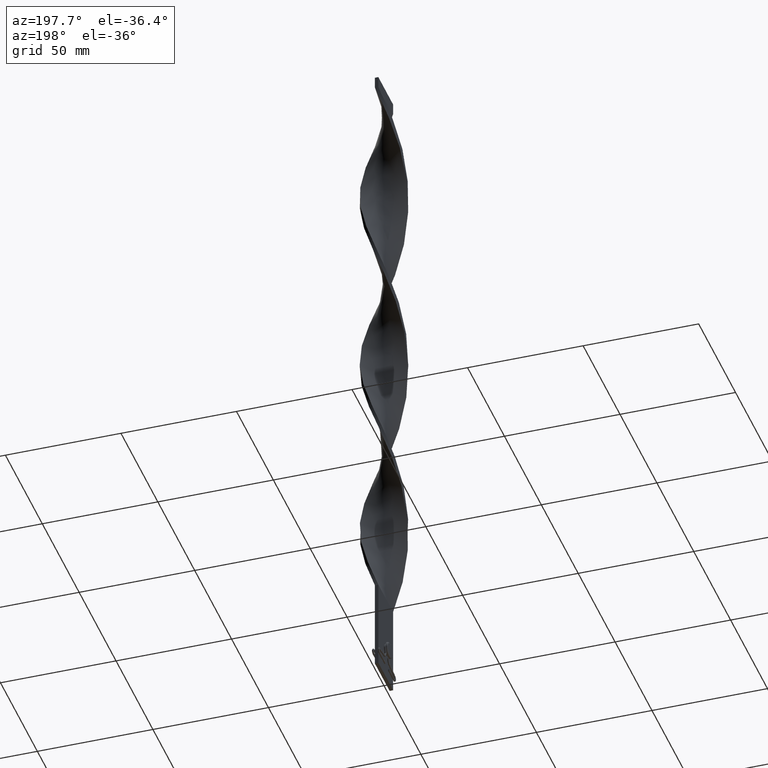
[diagram: clean part render]
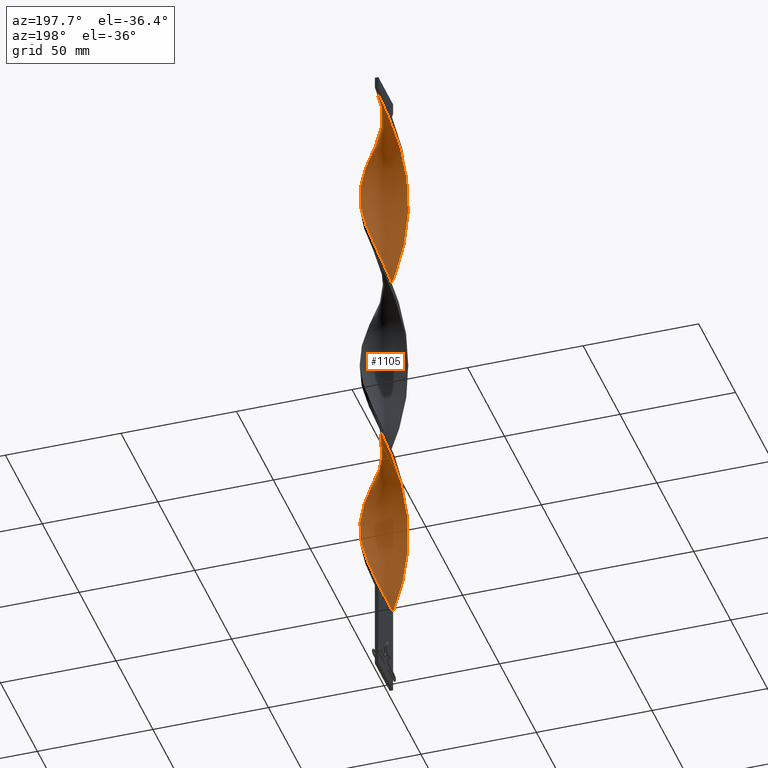
[diagram: same view with one face highlighted and labeled with its STEP entity id]
A machine part, auxiliary view. The second image highlights one B-rep face of the part: STEP entity #1105.
In plain terms, the highlighted face is a freeform B-spline surface patch.
Its self-contained STEP definition (entity closure, byte-faithful):
#4 = CARTESIAN_POINT ( 'NONE',  ( 1.537017068246182117, 9.940973719881537107, 127.1250000000000142 ) ) ;
#8 = CARTESIAN_POINT ( 'NONE',  ( 0.8235783949559587480, -9.994209254731549308, 205.7500000000000284 ) ) ;
#10 = CARTESIAN_POINT ( 'NONE',  ( -9.742327908732747233, -2.376877556528110169, 74.00000000000001421 ) ) ;
#18 = CARTESIAN_POINT ( 'NONE',  ( 0.8235783949559540851, 9.994209254731551084, 214.2500000000000284 ) ) ;
#24 = CARTESIAN_POINT ( 'NONE',  ( -9.759557557171204323, -2.305110905848664515, 163.2500000000000000 ) ) ;
#29 = CARTESIAN_POINT ( 'NONE',  ( 9.555263588120851637, 3.143615391390499170, 156.8750000000000284 ) ) ;
#41 = CARTESIAN_POINT ( 'NONE',  ( 9.742327908732747233, -2.376877556528107061, 91.00000000000000000 ) ) ;
#48 = CARTESIAN_POINT ( 'NONE',  ( 6.540737725975565020, 7.601397897755387767, 231.2500000000000000 ) ) ;
#59 = CARTESIAN_POINT ( 'NONE',  ( -5.942494737169152330, 8.116165120681838374, 275.8750000000000000 ) ) ;
#63 = CARTESIAN_POINT ( 'NONE',  ( -10.00000000000000000, 0.7499999999999982236, 82.50000000000000000 ) ) ;
#70 = CARTESIAN_POINT ( 'NONE',  ( -9.250558116688340604, 3.871650104254189539, 180.2500000000000284 ) ) ;
#76 = CARTESIAN_POINT ( 'NONE',  ( 4.599684817117892344, 8.945852645255826019, 224.8750000000000284 ) ) ;
#84 = CARTESIAN_POINT ( 'NONE',  ( -1.610139721665729162, 9.929392229344635723, 288.6250000000000000 ) ) ;
#92 = CARTESIAN_POINT ( 'NONE',  ( -3.803462330970843297, 9.278802417170325612, 201.5000000000000000 ) ) ;
#97 = CARTESIAN_POINT ( 'NONE',  ( -3.871650104254189539, -9.250558116688340604, 137.7500000000000000 ) ) ;
#104 = CARTESIAN_POINT ( 'NONE',  ( -9.555263588120855189, -3.143615391390493397, 241.8750000000000853 ) ) ;
#113 = CARTESIAN_POINT ( 'NONE',  ( 5.942494737169148777, 8.116165120681840150, 229.1250000000000000 ) ) ;
#117 =( BOUNDED_CURVE ( )  B_SPLINE_CURVE ( 2, ( #4612, #262, #1717, #1332, #3172, #3585, #566, #1357, #1695, #4250, #2783, #2052, #1308, #2437, #2832, #2395, #3866, #1289, #220, #3534, #240, #2032, #987, #3512, #2099, #4632, #2764, #293, #1744, #2808, #4275, #1381, #2485, #3964, #966, #664, #2124, #3608, #316, #3915, #1767, #4594, #431, #497, #1524, #2271, #97, #4154, #1163, #755, #3768, #1549, #1112, #474, #2637, #4419, #803, #2586, #24, #3748, #1934, #845, #3030, #3388, #4519, #2612, #3411, #4470, #456, #4491, #406, #1914, #1210, #3055, #119, #1473, #3788, #1186, #4110, #1503, #2665, #4133, #4064, #2954, #828, #1572, #2292, #76, #2687, #3008, #48, #2310, #775, #1959, #2215, #3695, #1859, #2982, #3340, #4446, #1141, #4087, #2241, #3718, #1891, #3367, #4222, #2020, #557, #2002, #1685, #186, #3498, #3121, #3903, #1615, #1985, #893, #4206, #3463, #4264 ),
 .UNSPECIFIED., .F., .T. ) 
 B_SPLINE_CURVE_WITH_KNOTS ( ( 3, 2, 2, 2, 2, 2, 2, 2, 2, 2, 2, 2, 2, 2, 2, 2, 2, 2, 2, 2, 2, 2, 2, 2, 2, 2, 2, 2, 2, 2, 2, 2, 2, 2, 2, 2, 2, 2, 2, 2, 2, 2, 2, 2, 2, 2, 2, 2, 2, 2, 2, 2, 2, 2, 2, 2, 2, 2, 2, 2, 3 ),
 ( 0.000000000000000000, 0.01250000000000000243, 0.02500000000000000486, 0.03749999999999999861, 0.05000000000000000971, 0.06250000000000000000, 0.07499999999999999722, 0.08749999999999998057, 0.1000000000000000194, 0.1125000000000000028, 0.1250000000000000000, 0.1375000000000000111, 0.1499999999999999944, 0.1625000000000000056, 0.1749999999999999611, 0.1875000000000000000, 0.2000000000000000389, 0.2124999999999999944, 0.2250000000000000056, 0.2374999999999999611, 0.2500000000000000000, 0.2625000000000000111, 0.2750000000000000222, 0.2874999999999999778, 0.2999999999999999889, 0.3125000000000000000, 0.3250000000000000111, 0.3375000000000000777, 0.3499999999999999223, 0.3624999999999999889, 0.3750000000000000000, 0.3875000000000000111, 0.4000000000000000777, 0.4124999999999999223, 0.4249999999999999889, 0.4375000000000000000, 0.4500000000000000111, 0.4625000000000000777, 0.4749999999999999223, 0.4874999999999999889, 0.5000000000000000000, 0.5124999999999999556, 0.5250000000000000222, 0.5374999999999999778, 0.5500000000000000444, 0.5625000000000000000, 0.5749999999999999556, 0.5875000000000000222, 0.5999999999999999778, 0.6125000000000000444, 0.6250000000000000000, 0.6374999999999999556, 0.6500000000000000222, 0.6624999999999999778, 0.6750000000000001554, 0.6875000000000000000, 0.6999999999999998446, 0.7125000000000000222, 0.7249999999999999778, 0.7375000000000001554, 0.7500000000000000000 ),
 .UNSPECIFIED. ) 
 CURVE ( )  GEOMETRIC_REPRESENTATION_ITEM ( )  RATIONAL_B_SPLINE_CURVE ( ( 1.000000000000000000, 0.9969173337331279638, 1.000000000000000000, 0.9969173337331279638, 1.000000000000000000, 0.9969173337331279638, 1.000000000000000000, 0.9969173337331279638, 1.000000000000000000, 0.9969173337331279638, 1.000000000000000000, 0.9969173337331279638, 1.000000000000000000, 0.9969173337331279638, 1.000000000000000000, 0.9969173337331279638, 1.000000000000000000, 0.9969173337331279638, 1.000000000000000000, 0.9969173337331279638, 1.000000000000000000, 0.9969173337331279638, 1.000000000000000000, 0.9969173337331279638, 1.000000000000000000, 0.9969173337331279638, 1.000000000000000000, 0.9969173337331279638, 1.000000000000000000, 0.9969173337331279638, 1.000000000000000000, 0.9969173337331279638, 1.000000000000000000, 0.9969173337331279638, 1.000000000000000000, 0.9969173337331279638, 1.000000000000000000, 0.9969173337331279638, 1.000000000000000000, 0.9969173337331279638, 1.000000000000000000, 0.9969173337331279638, 1.000000000000000000, 0.9969173337331279638, 1.000000000000000000, 0.9969173337331279638, 1.000000000000000000, 0.9969173337331279638, 1.000000000000000000, 0.9969173337331279638, 1.000000000000000000, 0.9969173337331279638, 1.000000000000000000, 0.9969173337331279638, 1.000000000000000000, 0.9969173337331279638, 1.000000000000000000, 0.9969173337331279638, 1.000000000000000000, 0.9969173337331279638, 1.000000000000000000, 0.9969173337331279638, 1.000000000000000000, 0.9969173337331279638, 1.000000000000000000, 0.9969173337331279638, 1.000000000000000000, 0.9969173337331279638, 1.000000000000000000, 0.9969173337331279638, 1.000000000000000000, 0.9969173337331279638, 1.000000000000000000, 0.9969173337331279638, 1.000000000000000000, 0.9969173337331279638, 1.000000000000000000, 0.9969173337331279638, 1.000000000000000000, 0.9969173337331279638, 1.000000000000000000, 0.9969173337331279638, 1.000000000000000000, 0.9969173337331279638, 1.000000000000000000, 0.9969173337331279638, 1.000000000000000000, 0.9969173337331279638, 1.000000000000000000, 0.9969173337331279638, 1.000000000000000000, 0.9969173337331279638, 1.000000000000000000, 0.9969173337331279638, 1.000000000000000000, 0.9969173337331279638, 1.000000000000000000, 0.9969173337331279638, 1.000000000000000000, 0.9969173337331279638, 1.000000000000000000, 0.9969173337331279638, 1.000000000000000000, 0.9969173337331279638, 1.000000000000000000, 0.9969173337331279638, 1.000000000000000000, 0.9969173337331279638, 1.000000000000000000, 0.9969173337331279638, 1.000000000000000000, 0.9969173337331279638, 1.000000000000000000, 0.9969173337331279638, 1.000000000000000000, 0.9969173337331279638, 1.000000000000000000, 0.9969173337331279638, 1.000000000000000000, 0.9969173337331279638, 1.000000000000000000 ) ) 
 REPRESENTATION_ITEM ( '' )  );
#119 = CARTESIAN_POINT ( 'NONE',  ( -5.208159890536746772, 8.569572367079016928, 197.2500000000000000 ) ) ;
#125 = CARTESIAN_POINT ( 'NONE',  ( -9.929392229344635723, -1.610139721665728274, 246.1250000000000568 ) ) ;
#140 = CARTESIAN_POINT ( 'NONE',  ( 9.940973719881537107, 1.537017068246186113, 250.3750000000000853 ) ) ;
#150 = CARTESIAN_POINT ( 'NONE',  ( -7.649331004530119493, 6.484615268705939961, 99.50000000000000000 ) ) ;
#161 = CARTESIAN_POINT ( 'NONE',  ( 3.871650104254190428, 9.250558116688340604, 222.7500000000000284 ) ) ;
#181 = CARTESIAN_POINT ( 'NONE',  ( -8.531008882968828644, -5.271089777143521893, 65.50000000000000000 ) ) ;
#186 = CARTESIAN_POINT ( 'NONE',  ( 7.086630674828938936, -7.138980714781980375, 275.8750000000000568 ) ) ;
#206 = CARTESIAN_POINT ( 'NONE',  ( 9.578141394460875091, -3.073204743451132259, 173.8750000000000568 ) ) ;
#220 = CARTESIAN_POINT ( 'NONE',  ( 9.759557557171206099, 2.305110905848663627, 78.25000000000001421 ) ) ;
#231 = CARTESIAN_POINT ( 'NONE',  ( 3.871650104254190428, 9.250558116688340604, 52.75000000000000711 ) ) ;
#240 = CARTESIAN_POINT ( 'NONE',  ( 10.00000000000000000, 0.7500000000000018874, 82.50000000000000000 ) ) ;
#262 = CARTESIAN_POINT ( 'NONE',  ( 0.03701706824618331004, 10.05902628011846289, 42.12500000000000711 ) ) ;
#293 = CARTESIAN_POINT ( 'NONE',  ( 8.945852645255826019, -4.599684817117892344, 97.37500000000000000 ) ) ;
#294 = CARTESIAN_POINT ( 'NONE',  ( 3.073204743451137588, 9.578141394460873315, 131.3750000000000000 ) ) ;
#306 = CARTESIAN_POINT ( 'NONE',  ( 5.942494737169148777, 8.116165120681840150, 59.12500000000001421 ) ) ;
#316 = CARTESIAN_POINT ( 'NONE',  ( 2.305110905848664071, -9.759557557171204323, 120.7500000000000000 ) ) ;
#319 = CARTESIAN_POINT ( 'NONE',  ( 6.540737725975567685, -7.601397897755383326, 188.7500000000000284 ) ) ;
#323 = VERTEX_POINT ( 'NONE', #3195 ) ;
#333 = CARTESIAN_POINT ( 'NONE',  ( -0.8235783949559576378, 9.994209254731549308, 290.7500000000000000 ) ) ;
#341 = CARTESIAN_POINT ( 'NONE',  ( 8.569572367079020481, -5.208159890536742331, 180.2500000000000284 ) ) ;
#353 = CARTESIAN_POINT ( 'NONE',  ( -3.143615391390490288, -9.555263588120855189, 135.6249999999999716 ) ) ;
#367 = CARTESIAN_POINT ( 'NONE',  ( -1.537017068246183449, -9.940973719881537107, 212.1250000000000284 ) ) ;
#368 = CARTESIAN_POINT ( 'NONE',  ( 9.940973719881537107, -1.537017068246185891, 169.6250000000000568 ) ) ;
#371 = CARTESIAN_POINT ( 'NONE',  ( 8.159681294278263053, -5.882599862582942762, 182.3750000000000284 ) ) ;
#376 = CARTESIAN_POINT ( 'NONE',  ( 1.537017068246187002, -9.940973719881537107, 122.8750000000000284 ) ) ;
#386 = CARTESIAN_POINT ( 'NONE',  ( 8.531008882968828644, 5.271089777143522781, 150.5000000000000284 ) ) ;
#387 = B_SPLINE_CURVE_WITH_KNOTS ( 'NONE', 3,
 ( #937, #2802, #1327, #2413 ),
 .UNSPECIFIED., .F., .F.,
 ( 4, 4 ),
 ( 0.000000000000000000, 1.000000000000000000 ),
 .UNSPECIFIED. ) ;
#394 = CARTESIAN_POINT ( 'NONE',  ( -0.8235783949559576378, 9.994209254731549308, 120.7500000000000000 ) ) ;
#401 = CARTESIAN_POINT ( 'NONE',  ( 5.208159890536744996, -8.569572367079016928, 112.2500000000000142 ) ) ;
#406 = CARTESIAN_POINT ( 'NONE',  ( -7.601397897755388655, 6.540737725975562356, 188.7500000000000284 ) ) ;
#423 = CARTESIAN_POINT ( 'NONE',  ( 8.116165120681840150, -5.942494737169147889, 101.6250000000000000 ) ) ;
#431 = CARTESIAN_POINT ( 'NONE',  ( -0.8235783949559528638, -9.994209254731551084, 129.2500000000000000 ) ) ;
#440 = CARTESIAN_POINT ( 'NONE',  ( -8.159681294278263053, 5.882599862582948980, 267.3750000000000000 ) ) ;
#450 = CARTESIAN_POINT ( 'NONE',  ( -5.208159890536746772, 8.569572367079016928, 197.2500000000000000 ) ) ;
#456 = CARTESIAN_POINT ( 'NONE',  ( -8.531008882968832197, 5.271089777143517452, 184.5000000000000284 ) ) ;
#470 = CARTESIAN_POINT ( 'NONE',  ( -10.05902628011846289, -0.03701706824618624520, 80.37500000000001421 ) ) ;
#474 = CARTESIAN_POINT ( 'NONE',  ( -8.159681294278259500, -5.882599862582947203, 152.6250000000000000 ) ) ;
#481 = CARTESIAN_POINT ( 'NONE',  ( -8.531008882968828644, -5.271089777143521893, 235.5000000000000284 ) ) ;
#490 = CARTESIAN_POINT ( 'NONE',  ( -1.537017068246183227, -9.940973719881537107, 42.12500000000001421 ) ) ;
#495 = CARTESIAN_POINT ( 'NONE',  ( -3.803462330970837968, -9.278802417170325612, 48.50000000000000000 ) ) ;
#497 = CARTESIAN_POINT ( 'NONE',  ( -1.610139721665723833, -9.929392229344637499, 131.3750000000000284 ) ) ;
#516 = CARTESIAN_POINT ( 'NONE',  ( -2.305110905848660963, -9.759557557171206099, 44.25000000000000000 ) ) ;
#520 = CARTESIAN_POINT ( 'NONE',  ( -6.484615268705940849, -7.649331004530119493, 57.00000000000000000 ) ) ;
#522 = CARTESIAN_POINT ( 'NONE',  ( 0.7500000000000024425, -10.00000000000000000, 295.0000000000000000 ) ) ;
#534 = CARTESIAN_POINT ( 'NONE',  ( 3.073204743451142029, -9.578141394460869762, 288.6250000000000000 ) ) ;
#552 = CARTESIAN_POINT ( 'NONE',  ( -9.278802417170327388, 3.803462330970837524, 91.00000000000000000 ) ) ;
#557 = CARTESIAN_POINT ( 'NONE',  ( 8.531008882968830420, -5.271089777143519228, 269.5000000000000000 ) ) ;
#566 = CARTESIAN_POINT ( 'NONE',  ( 3.871650104254190428, 9.250558116688340604, 52.75000000000000711 ) ) ;
#585 = CARTESIAN_POINT ( 'NONE',  ( 8.159681294278259500, 5.882599862582951644, 67.62500000000002842 ) ) ;
#608 = CARTESIAN_POINT ( 'NONE',  ( -8.159681294278261277, 5.882599862582948091, 267.3750000000000568 ) ) ;
#614 = CARTESIAN_POINT ( 'NONE',  ( 2.376877556528112834, -9.742327908732747233, 201.5000000000000000 ) ) ;
#630 = CARTESIAN_POINT ( 'NONE',  ( -9.929392229344635723, -1.610139721665728274, 246.1250000000000284 ) ) ;
#636 = CARTESIAN_POINT ( 'NONE',  ( 7.649331004530121270, -6.484615268705938185, 184.5000000000000284 ) ) ;
#659 = CARTESIAN_POINT ( 'NONE',  ( -9.578141394460873315, 3.073204743451138476, 258.8750000000000000 ) ) ;
#664 = CARTESIAN_POINT ( 'NONE',  ( 4.533719918490542788, -8.979463439879779685, 114.3750000000000142 ) ) ;
#667 = CARTESIAN_POINT ( 'NONE',  ( -7.086630674828936272, -7.138980714781982151, 229.1250000000000000 ) ) ;
#684 = CARTESIAN_POINT ( 'NONE',  ( -4.599684817117895008, 8.945852645255822466, 280.1250000000000000 ) ) ;
#691 = CARTESIAN_POINT ( 'NONE',  ( -1.537017068246183227, -9.940973719881537107, 212.1250000000000284 ) ) ;
#700 = CARTESIAN_POINT ( 'NONE',  ( -6.484615268705945290, 7.649331004530117717, 193.0000000000000284 ) ) ;
#712 = CARTESIAN_POINT ( 'NONE',  ( 0.03701706824619252489, -10.05902628011846467, 207.8750000000000568 ) ) ;
#715 = CARTESIAN_POINT ( 'NONE',  ( -1.610139721665729162, 9.929392229344635723, 118.6250000000000284 ) ) ;
#723 = CARTESIAN_POINT ( 'NONE',  ( 1.610139721665725387, 9.929392229344635723, 216.3750000000000284 ) ) ;
#737 = CARTESIAN_POINT ( 'NONE',  ( -0.03701706824618700153, 10.05902628011846289, 122.8750000000000284 ) ) ;
#740 = CARTESIAN_POINT ( 'NONE',  ( -0.8235783949559576378, 9.994209254731549308, 120.7500000000000000 ) ) ;
#746 =( BOUNDED_SURFACE ( )  B_SPLINE_SURFACE ( 1, 2, ( 
 ( #957, #2845, #933, #1350, #3950, #3598, #231, #4334, #1778, #306, #4624, #3257, #2871, #585, #1028, #2504, #3525, #4266, #1687, #978, #2450, #3002, #2904, #1909, #41, #2581, #794, #3361, #1078, #423, #1496, #1468, #1157, #4411, #401, #2976, #2235, #4441, #1444, #376, #3669, #2926, #3742, #4364, #1519, #353, #2949, #4024, #4465, #4059, #750, #1052, #1134, #3308, #770, #2632, #2606, #1103, #1832, #1854, #4081, #3713, #2264, #2210, #3642, #1883, #70, #4001, #4106, #3690, #2529, #3335, #700, #2159, #450, #3384, #92, #1807, #3286, #4751, #4389, #2552, #18, #723, #2186, #1180, #161, #1563, #1275, #113, #2750, #3049, #1542, #2681, #3474, #1608, #822, #4129, #4147, #140, #2721, #2358, #3025, #3068, #1204, #3431, #3089, #4218, #4553, #1588, #3811, #1246, #4168, #4199, #3406, #1979, #4533, #534, #3782, #908, #841 ),
 ( #1222, #490, #516, #888, #2381, #2657, #3832, #1998, #2286, #860, #4512, #3455, #181, #2329, #3491, #2306, #1631, #1951, #3113, #470, #1930, #4577, #2699, #3853, #552, #2014, #4487, #3763, #2102, #2891, #3633, #2834, #4298, #988, #3989, #4687, #4352, #1041, #740, #2860, #2916, #1385, #1066, #294, #3612, #3588, #1791, #3223, #4710, #1745, #1090, #3139, #3276, #2462, #2937, #1820, #4014, #4664, #4741, #1408, #2517, #368, #1359, #206, #4321, #2172, #341, #3936, #636, #1010, #319, #1433, #2543, #1657, #1770, #2491, #2127, #4376, #8, #712, #3249, #691, #3659, #2153, #3297, #3967, #1457, #4403, #2565, #667, #4046, #2199, #481, #4477, #1169, #104, #3397, #125, #762, #1941, #2278, #3061, #2223, #3348, #4094, #1555, #2963, #440, #834, #4139, #4499, #59, #2671, #1921, #2622, #1866, #3774, #84, #1196, #1533, #783 ) ),
 .UNSPECIFIED., .F., .F., .F. ) 
 B_SPLINE_SURFACE_WITH_KNOTS ( ( 2, 2 ),
 ( 3, 2, 2, 2, 2, 2, 2, 2, 2, 2, 2, 2, 2, 2, 2, 2, 2, 2, 2, 2, 2, 2, 2, 2, 2, 2, 2, 2, 2, 2, 2, 2, 2, 2, 2, 2, 2, 2, 2, 2, 2, 2, 2, 2, 2, 2, 2, 2, 2, 2, 2, 2, 2, 2, 2, 2, 2, 2, 2, 2, 3 ),
 ( 0.000000000000000000, 1.000000000000000000 ),
 ( 0.000000000000000000, 0.01250000000000000069, 0.02500000000000000139, 0.03749999999999999861, 0.05000000000000000278, 0.06250000000000000000, 0.07499999999999999722, 0.08749999999999999445, 0.1000000000000000056, 0.1125000000000000028, 0.1250000000000000000, 0.1375000000000000111, 0.1499999999999999944, 0.1625000000000000056, 0.1749999999999999889, 0.1875000000000000000, 0.2000000000000000111, 0.2124999999999999944, 0.2250000000000000056, 0.2374999999999999889, 0.2500000000000000000, 0.2625000000000000111, 0.2750000000000000222, 0.2874999999999999778, 0.2999999999999999889, 0.3125000000000000000, 0.3250000000000000111, 0.3375000000000000222, 0.3499999999999999778, 0.3624999999999999889, 0.3750000000000000000, 0.3875000000000000111, 0.4000000000000000222, 0.4124999999999999778, 0.4249999999999999889, 0.4375000000000000000, 0.4500000000000000111, 0.4625000000000000222, 0.4749999999999999778, 0.4874999999999999889, 0.5000000000000000000, 0.5124999999999999556, 0.5250000000000000222, 0.5374999999999999778, 0.5500000000000000444, 0.5625000000000000000, 0.5749999999999999556, 0.5875000000000000222, 0.5999999999999999778, 0.6125000000000000444, 0.6250000000000000000, 0.6374999999999999556, 0.6500000000000000222, 0.6624999999999999778, 0.6750000000000000444, 0.6875000000000000000, 0.6999999999999999556, 0.7125000000000000222, 0.7249999999999999778, 0.7375000000000000444, 0.7500000000000000000 ),
 .UNSPECIFIED. ) 
 GEOMETRIC_REPRESENTATION_ITEM ( )  RATIONAL_B_SPLINE_SURFACE ( (
 ( 1.000000000000000000, 0.9969173337331279638, 1.000000000000000000, 0.9969173337331279638, 1.000000000000000000, 0.9969173337331279638, 1.000000000000000000, 0.9969173337331279638, 1.000000000000000000, 0.9969173337331279638, 1.000000000000000000, 0.9969173337331279638, 1.000000000000000000, 0.9969173337331279638, 1.000000000000000000, 0.9969173337331279638, 1.000000000000000000, 0.9969173337331279638, 1.000000000000000000, 0.9969173337331279638, 1.000000000000000000, 0.9969173337331279638, 1.000000000000000000, 0.9969173337331279638, 1.000000000000000000, 0.9969173337331279638, 1.000000000000000000, 0.9969173337331279638, 1.000000000000000000, 0.9969173337331279638, 1.000000000000000000, 0.9969173337331279638, 1.000000000000000000, 0.9969173337331279638, 1.000000000000000000, 0.9969173337331279638, 1.000000000000000000, 0.9969173337331279638, 1.000000000000000000, 0.9969173337331279638, 1.000000000000000000, 0.9969173337331279638, 1.000000000000000000, 0.9969173337331279638, 1.000000000000000000, 0.9969173337331279638, 1.000000000000000000, 0.9969173337331279638, 1.000000000000000000, 0.9969173337331279638, 1.000000000000000000, 0.9969173337331279638, 1.000000000000000000, 0.9969173337331279638, 1.000000000000000000, 0.9969173337331279638, 1.000000000000000000, 0.9969173337331279638, 1.000000000000000000, 0.9969173337331279638, 1.000000000000000000, 0.9969173337331279638, 1.000000000000000000, 0.9969173337331279638, 1.000000000000000000, 0.9969173337331279638, 1.000000000000000000, 0.9969173337331279638, 1.000000000000000000, 0.9969173337331279638, 1.000000000000000000, 0.9969173337331279638, 1.000000000000000000, 0.9969173337331279638, 1.000000000000000000, 0.9969173337331279638, 1.000000000000000000, 0.9969173337331279638, 1.000000000000000000, 0.9969173337331279638, 1.000000000000000000, 0.9969173337331279638, 1.000000000000000000, 0.9969173337331279638, 1.000000000000000000, 0.9969173337331279638, 1.000000000000000000, 0.9969173337331279638, 1.000000000000000000, 0.9969173337331279638, 1.000000000000000000, 0.9969173337331279638, 1.000000000000000000, 0.9969173337331279638, 1.000000000000000000, 0.9969173337331279638, 1.000000000000000000, 0.9969173337331279638, 1.000000000000000000, 0.9969173337331279638, 1.000000000000000000, 0.9969173337331279638, 1.000000000000000000, 0.9969173337331279638, 1.000000000000000000, 0.9969173337331279638, 1.000000000000000000, 0.9969173337331279638, 1.000000000000000000, 0.9969173337331279638, 1.000000000000000000, 0.9969173337331279638, 1.000000000000000000, 0.9969173337331279638, 1.000000000000000000, 0.9969173337331279638, 1.000000000000000000, 0.9969173337331279638, 1.000000000000000000, 0.9969173337331279638, 1.000000000000000000),
 ( 1.000000000000000000, 0.9969173337331279638, 1.000000000000000000, 0.9969173337331279638, 1.000000000000000000, 0.9969173337331279638, 1.000000000000000000, 0.9969173337331279638, 1.000000000000000000, 0.9969173337331279638, 1.000000000000000000, 0.9969173337331279638, 1.000000000000000000, 0.9969173337331279638, 1.000000000000000000, 0.9969173337331279638, 1.000000000000000000, 0.9969173337331279638, 1.000000000000000000, 0.9969173337331279638, 1.000000000000000000, 0.9969173337331279638, 1.000000000000000000, 0.9969173337331279638, 1.000000000000000000, 0.9969173337331279638, 1.000000000000000000, 0.9969173337331279638, 1.000000000000000000, 0.9969173337331279638, 1.000000000000000000, 0.9969173337331279638, 1.000000000000000000, 0.9969173337331279638, 1.000000000000000000, 0.9969173337331279638, 1.000000000000000000, 0.9969173337331279638, 1.000000000000000000, 0.9969173337331279638, 1.000000000000000000, 0.9969173337331279638, 1.000000000000000000, 0.9969173337331279638, 1.000000000000000000, 0.9969173337331279638, 1.000000000000000000, 0.9969173337331279638, 1.000000000000000000, 0.9969173337331279638, 1.000000000000000000, 0.9969173337331279638, 1.000000000000000000, 0.9969173337331279638, 1.000000000000000000, 0.9969173337331279638, 1.000000000000000000, 0.9969173337331279638, 1.000000000000000000, 0.9969173337331279638, 1.000000000000000000, 0.9969173337331279638, 1.000000000000000000, 0.9969173337331279638, 1.000000000000000000, 0.9969173337331279638, 1.000000000000000000, 0.9969173337331279638, 1.000000000000000000, 0.9969173337331279638, 1.000000000000000000, 0.9969173337331279638, 1.000000000000000000, 0.9969173337331279638, 1.000000000000000000, 0.9969173337331279638, 1.000000000000000000, 0.9969173337331279638, 1.000000000000000000, 0.9969173337331279638, 1.000000000000000000, 0.9969173337331279638, 1.000000000000000000, 0.9969173337331279638, 1.000000000000000000, 0.9969173337331279638, 1.000000000000000000, 0.9969173337331279638, 1.000000000000000000, 0.9969173337331279638, 1.000000000000000000, 0.9969173337331279638, 1.000000000000000000, 0.9969173337331279638, 1.000000000000000000, 0.9969173337331279638, 1.000000000000000000, 0.9969173337331279638, 1.000000000000000000, 0.9969173337331279638, 1.000000000000000000, 0.9969173337331279638, 1.000000000000000000, 0.9969173337331279638, 1.000000000000000000, 0.9969173337331279638, 1.000000000000000000, 0.9969173337331279638, 1.000000000000000000, 0.9969173337331279638, 1.000000000000000000, 0.9969173337331279638, 1.000000000000000000, 0.9969173337331279638, 1.000000000000000000, 0.9969173337331279638, 1.000000000000000000, 0.9969173337331279638, 1.000000000000000000, 0.9969173337331279638, 1.000000000000000000) ) ) 
 REPRESENTATION_ITEM ( '' )  SURFACE ( )  );
#750 = CARTESIAN_POINT ( 'NONE',  ( -6.540737725975563244, -7.601397897755388655, 146.2500000000000284 ) ) ;
#755 = CARTESIAN_POINT ( 'NONE',  ( -5.942494737169147889, -8.116165120681841927, 144.1250000000000000 ) ) ;
#762 = CARTESIAN_POINT ( 'NONE',  ( -9.994209254731551084, -0.8235783949559571937, 248.2500000000000284 ) ) ;
#770 = CARTESIAN_POINT ( 'NONE',  ( -8.569572367079016928, -5.208159890536745884, 154.7500000000000000 ) ) ;
#775 = CARTESIAN_POINT ( 'NONE',  ( 7.649331004530117717, 6.484615268705942626, 235.5000000000000284 ) ) ;
#783 = CARTESIAN_POINT ( 'NONE',  ( 0.7499999999999976685, 10.00000000000000000, 295.0000000000000000 ) ) ;
#794 = CARTESIAN_POINT ( 'NONE',  ( 9.250558116688340604, -3.871650104254190428, 95.25000000000000000 ) ) ;
#803 = CARTESIAN_POINT ( 'NONE',  ( -9.278802417170325612, -3.803462330970841965, 159.0000000000000000 ) ) ;
#822 = CARTESIAN_POINT ( 'NONE',  ( 9.278802417170325612, 3.803462330970841077, 244.0000000000000284 ) ) ;
#828 = CARTESIAN_POINT ( 'NONE',  ( 2.376877556528107949, 9.742327908732747233, 218.5000000000000284 ) ) ;
#834 = CARTESIAN_POINT ( 'NONE',  ( -7.649331004530119493, 6.484615268705939961, 269.5000000000000000 ) ) ;
#841 = CARTESIAN_POINT ( 'NONE',  ( 0.7500000000000025535, -10.00000000000000000, 295.0000000000000000 ) ) ;
#845 = CARTESIAN_POINT ( 'NONE',  ( -10.05902628011846289, 0.03701706824618602315, 169.6250000000000568 ) ) ;
#851 = CARTESIAN_POINT ( 'NONE',  ( -9.578141394460873315, 3.073204743451138476, 88.87500000000001421 ) ) ;
#860 = CARTESIAN_POINT ( 'NONE',  ( -7.086630674828936272, -7.138980714781982151, 59.12500000000001421 ) ) ;
#864 = CARTESIAN_POINT ( 'NONE',  ( -5.208159890536742331, -8.569572367079020481, 52.75000000000000711 ) ) ;
#888 = CARTESIAN_POINT ( 'NONE',  ( -3.073204743451138921, -9.578141394460871538, 46.37500000000000711 ) ) ;
#893 = CARTESIAN_POINT ( 'NONE',  ( 3.073204743451142029, -9.578141394460869762, 288.6250000000000000 ) ) ;
#908 = CARTESIAN_POINT ( 'NONE',  ( 1.537017068246187002, -9.940973719881537107, 292.8750000000000568 ) ) ;
#933 = CARTESIAN_POINT ( 'NONE',  ( 0.8235783949559540851, 9.994209254731551084, 44.25000000000000000 ) ) ;
#937 = CARTESIAN_POINT ( 'NONE',  ( 0.7500000000000024425, -10.00000000000000000, 295.0000000000000000 ) ) ;
#957 = CARTESIAN_POINT ( 'NONE',  ( -0.7500000000000013323, 10.00000000000000000, 40.00000000000000000 ) ) ;
#966 = CARTESIAN_POINT ( 'NONE',  ( 5.208159890536744996, -8.569572367079016928, 112.2500000000000142 ) ) ;
#978 = CARTESIAN_POINT ( 'NONE',  ( 9.940973719881537107, 1.537017068246186113, 80.37500000000001421 ) ) ;
#987 = CARTESIAN_POINT ( 'NONE',  ( 9.994209254731551084, -0.8235783949559537520, 86.75000000000000000 ) ) ;
#988 = CARTESIAN_POINT ( 'NONE',  ( -4.599684817117895008, 8.945852645255820690, 110.1250000000000142 ) ) ;
#1003 = CARTESIAN_POINT ( 'NONE',  ( -7.086630674828935383, -7.138980714781982151, 229.1250000000000284 ) ) ;
#1010 = CARTESIAN_POINT ( 'NONE',  ( 7.138980714781980375, -7.086630674828938936, 186.6250000000000284 ) ) ;
#1028 = CARTESIAN_POINT ( 'NONE',  ( 8.569572367079016928, 5.208159890536744996, 69.75000000000000000 ) ) ;
#1032 = CARTESIAN_POINT ( 'NONE',  ( -6.540737725975566796, 7.601397897755384214, 273.7500000000000000 ) ) ;
#1038 = CARTESIAN_POINT ( 'NONE',  ( 10.00000000000000000, -0.7499999999999970024, 167.5000000000000000 ) ) ;
#1041 = CARTESIAN_POINT ( 'NONE',  ( -1.610139721665729162, 9.929392229344635723, 118.6250000000000284 ) ) ;
#1052 = CARTESIAN_POINT ( 'NONE',  ( -7.138980714781976822, -7.086630674828941601, 148.3750000000000000 ) ) ;
#1066 = CARTESIAN_POINT ( 'NONE',  ( 2.305110905848659630, 9.759557557171206099, 129.2500000000000000 ) ) ;
#1069 = CARTESIAN_POINT ( 'NONE',  ( -2.376877556528111057, 9.742327908732747233, 116.5000000000000142 ) ) ;
#1078 = CARTESIAN_POINT ( 'NONE',  ( 8.531008882968830420, -5.271089777143519228, 99.50000000000000000 ) ) ;
#1090 = CARTESIAN_POINT ( 'NONE',  ( 7.601397897755384214, 6.540737725975567685, 146.2500000000000284 ) ) ;
#1103 = CARTESIAN_POINT ( 'NONE',  ( -9.578141394460873315, -3.073204743451138921, 161.1250000000000000 ) ) ;
#1105 = ADVANCED_FACE ( 'NONE', ( #1394 ), #746, .T. ) ;
#1112 = CARTESIAN_POINT ( 'NONE',  ( -7.649331004530117717, -6.484615268705943514, 150.5000000000000284 ) ) ;
#1127 = CARTESIAN_POINT ( 'NONE',  ( -10.05902628011846289, -0.03701706824618624520, 80.37500000000001421 ) ) ;
#1134 = CARTESIAN_POINT ( 'NONE',  ( -7.649331004530117717, -6.484615268705943514, 150.5000000000000284 ) ) ;
#1141 = CARTESIAN_POINT ( 'NONE',  ( 10.00000000000000000, 0.7500000000000018874, 252.5000000000000000 ) ) ;
#1157 = CARTESIAN_POINT ( 'NONE',  ( 6.484615268705943514, -7.649331004530117717, 108.0000000000000142 ) ) ;
#1163 = CARTESIAN_POINT ( 'NONE',  ( -5.271089777143519228, -8.531008882968830420, 142.0000000000000284 ) ) ;
#1169 = CARTESIAN_POINT ( 'NONE',  ( -9.250558116688337051, -3.871650104254193536, 239.7500000000000284 ) ) ;
#1180 = CARTESIAN_POINT ( 'NONE',  ( 3.143615391390491620, 9.555263588120855189, 220.6250000000000000 ) ) ;
#1186 = CARTESIAN_POINT ( 'NONE',  ( -3.073204743451139365, 9.578141394460873315, 203.6250000000000568 ) ) ;
#1196 = CARTESIAN_POINT ( 'NONE',  ( -0.8235783949559576378, 9.994209254731549308, 290.7500000000000000 ) ) ;
#1204 = CARTESIAN_POINT ( 'NONE',  ( 9.742327908732747233, -2.376877556528107061, 261.0000000000000000 ) ) ;
#1210 = CARTESIAN_POINT ( 'NONE',  ( -6.484615268705945290, 7.649331004530117717, 193.0000000000000284 ) ) ;
#1222 = CARTESIAN_POINT ( 'NONE',  ( -0.7499999999999987788, -10.00000000000000000, 40.00000000000000000 ) ) ;
#1246 = CARTESIAN_POINT ( 'NONE',  ( 7.086630674828939824, -7.138980714781980375, 275.8750000000000000 ) ) ;
#1266 = CARTESIAN_POINT ( 'NONE',  ( 0.03701706824619252489, -10.05902628011846467, 207.8750000000000568 ) ) ;
#1275 = CARTESIAN_POINT ( 'NONE',  ( 5.271089777143520116, 8.531008882968830420, 227.0000000000000000 ) ) ;
#1289 = CARTESIAN_POINT ( 'NONE',  ( 9.578141394460869762, 3.073204743451141585, 76.12500000000001421 ) ) ;
#1308 = CARTESIAN_POINT ( 'NONE',  ( 7.649331004530117717, 6.484615268705942626, 65.50000000000000000 ) ) ;
#1327 = CARTESIAN_POINT ( 'NONE',  ( 0.7499999999999992228, 3.333333333333333925, 295.0000000000000000 ) ) ;
#1332 = CARTESIAN_POINT ( 'NONE',  ( 1.610139721665725387, 9.929392229344637499, 46.37500000000000711 ) ) ;
#1350 = CARTESIAN_POINT ( 'NONE',  ( 1.610139721665725387, 9.929392229344635723, 46.37500000000000711 ) ) ;
#1354 = CARTESIAN_POINT ( 'NONE',  ( -9.994209254731551084, -0.8235783949559571937, 248.2500000000000284 ) ) ;
#1357 = CARTESIAN_POINT ( 'NONE',  ( 4.599684817117892344, 8.945852645255826019, 54.87500000000000000 ) ) ;
#1359 = CARTESIAN_POINT ( 'NONE',  ( 9.759557557171206099, -2.305110905848659186, 171.7500000000000000 ) ) ;
#1376 = CARTESIAN_POINT ( 'NONE',  ( 0.7499999999999976685, 10.00000000000000000, 295.0000000000000000 ) ) ;
#1381 = CARTESIAN_POINT ( 'NONE',  ( 7.086630674828938936, -7.138980714781980375, 105.8750000000000142 ) ) ;
#1384 = CARTESIAN_POINT ( 'NONE',  ( -0.7500000000000013323, 10.00000000000000000, 40.00000000000000000 ) ) ;
#1385 = CARTESIAN_POINT ( 'NONE',  ( 1.537017068246181895, 9.940973719881537107, 127.1250000000000142 ) ) ;
#1394 = FACE_OUTER_BOUND ( 'NONE', #4466, .T. ) ;
#1398 = CARTESIAN_POINT ( 'NONE',  ( -7.649331004530119493, 6.484615268705939961, 269.5000000000000000 ) ) ;
#1405 = CARTESIAN_POINT ( 'NONE',  ( 8.116165120681834821, 5.942494737169154995, 148.3750000000000000 ) ) ;
#1408 = CARTESIAN_POINT ( 'NONE',  ( 10.05902628011846289, 0.03701706824619197672, 165.3750000000000568 ) ) ;
#1433 = CARTESIAN_POINT ( 'NONE',  ( 5.942494737169154995, -8.116165120681834821, 190.8750000000000568 ) ) ;
#1435 = EDGE_CURVE ( 'NONE', #2156, #323, #1596, .T. ) ;
#1437 = CARTESIAN_POINT ( 'NONE',  ( -5.271089777143522781, 8.531008882968828644, 108.0000000000000142 ) ) ;
#1444 = CARTESIAN_POINT ( 'NONE',  ( 2.305110905848664071, -9.759557557171204323, 120.7500000000000000 ) ) ;
#1454 = CARTESIAN_POINT ( 'NONE',  ( 5.882599862582947203, 8.159681294278261277, 139.8750000000000000 ) ) ;
#1457 = CARTESIAN_POINT ( 'NONE',  ( -5.208159890536742331, -8.569572367079020481, 222.7500000000000284 ) ) ;
#1459 = CARTESIAN_POINT ( 'NONE',  ( 7.138980714781980375, -7.086630674828938048, 186.6250000000000284 ) ) ;
#1468 = CARTESIAN_POINT ( 'NONE',  ( 7.086630674828939824, -7.138980714781980375, 105.8750000000000142 ) ) ;
#1473 = CARTESIAN_POINT ( 'NONE',  ( -4.533719918490548118, 8.979463439879774356, 199.3750000000000568 ) ) ;
#1479 = CARTESIAN_POINT ( 'NONE',  ( -3.073204743451138921, -9.578141394460871538, 216.3750000000000284 ) ) ;
#1496 = CARTESIAN_POINT ( 'NONE',  ( 7.601397897755387767, -6.540737725975563244, 103.7500000000000142 ) ) ;
#1503 = CARTESIAN_POINT ( 'NONE',  ( -1.537017068246192553, 9.940973719881535331, 207.8750000000000568 ) ) ;
#1519 = CARTESIAN_POINT ( 'NONE',  ( -2.376877556528106616, -9.742327908732747233, 133.5000000000000000 ) ) ;
#1524 = CARTESIAN_POINT ( 'NONE',  ( -2.376877556528106616, -9.742327908732747233, 133.5000000000000000 ) ) ;
#1533 = CARTESIAN_POINT ( 'NONE',  ( -0.03701706824618700847, 10.05902628011846289, 292.8750000000000568 ) ) ;
#1542 = CARTESIAN_POINT ( 'NONE',  ( 7.649331004530117717, 6.484615268705942626, 235.5000000000000284 ) ) ;
#1547 = CARTESIAN_POINT ( 'NONE',  ( -0.7499999999999987788, -10.00000000000000000, 40.00000000000000000 ) ) ;
#1549 = CARTESIAN_POINT ( 'NONE',  ( -7.138980714781976822, -7.086630674828941601, 148.3750000000000000 ) ) ;
#1552 = CARTESIAN_POINT ( 'NONE',  ( -0.7500000000000013323, 10.00000000000000000, 40.00000000000000000 ) ) ;
#1555 = CARTESIAN_POINT ( 'NONE',  ( -8.979463439879781461, 4.533719918490539236, 263.1250000000000568 ) ) ;
#1563 = CARTESIAN_POINT ( 'NONE',  ( 4.599684817117892344, 8.945852645255824243, 224.8750000000000000 ) ) ;
#1572 = CARTESIAN_POINT ( 'NONE',  ( 3.143615391390492064, 9.555263588120855189, 220.6250000000000284 ) ) ;
#1588 = CARTESIAN_POINT ( 'NONE',  ( 8.116165120681840150, -5.942494737169147889, 271.6250000000000000 ) ) ;
#1596 = LINE ( 'NONE', #1552, #4728 ) ;
#1608 = CARTESIAN_POINT ( 'NONE',  ( 8.979463439879781461, 4.533719918490541900, 241.8750000000000853 ) ) ;
#1612 = CARTESIAN_POINT ( 'NONE',  ( -7.086630674828935383, -7.138980714781982151, 59.12500000000001421 ) ) ;
#1615 = CARTESIAN_POINT ( 'NONE',  ( 4.533719918490542788, -8.979463439879779685, 284.3750000000000568 ) ) ;
#1624 = CARTESIAN_POINT ( 'NONE',  ( 5.271089777143524557, -8.531008882968828644, 193.0000000000000284 ) ) ;
#1631 = CARTESIAN_POINT ( 'NONE',  ( -9.742327908732747233, -2.376877556528110169, 74.00000000000001421 ) ) ;
#1657 = CARTESIAN_POINT ( 'NONE',  ( 4.599684817117892344, -8.945852645255822466, 195.1250000000000568 ) ) ;
#1685 = CARTESIAN_POINT ( 'NONE',  ( 7.601397897755387767, -6.540737725975563244, 273.7500000000000000 ) ) ;
#1687 = CARTESIAN_POINT ( 'NONE',  ( 9.759557557171206099, 2.305110905848663627, 78.25000000000001421 ) ) ;
#1695 = CARTESIAN_POINT ( 'NONE',  ( 5.271089777143520116, 8.531008882968830420, 57.00000000000000000 ) ) ;
#1717 = CARTESIAN_POINT ( 'NONE',  ( 0.8235783949559541961, 9.994209254731551084, 44.25000000000000000 ) ) ;
#1744 = CARTESIAN_POINT ( 'NONE',  ( 8.531008882968830420, -5.271089777143519228, 99.50000000000000000 ) ) ;
#1745 = CARTESIAN_POINT ( 'NONE',  ( 7.086630674828935383, 7.138980714781983039, 144.1249999999999716 ) ) ;
#1761 = CARTESIAN_POINT ( 'NONE',  ( -6.484615268705940849, -7.649331004530119493, 227.0000000000000000 ) ) ;
#1763 = CARTESIAN_POINT ( 'NONE',  ( -5.208159890536742331, -8.569572367079020481, 222.7500000000000284 ) ) ;
#1767 = CARTESIAN_POINT ( 'NONE',  ( 0.7500000000000024425, -10.00000000000000000, 125.0000000000000000 ) ) ;
#1768 = CARTESIAN_POINT ( 'NONE',  ( 2.305110905848659630, 9.759557557171206099, 129.2500000000000000 ) ) ;
#1770 = CARTESIAN_POINT ( 'NONE',  ( 3.871650104254195313, -9.250558116688338828, 197.2500000000000000 ) ) ;
#1778 = CARTESIAN_POINT ( 'NONE',  ( 5.271089777143520116, 8.531008882968830420, 57.00000000000000000 ) ) ;
#1791 = CARTESIAN_POINT ( 'NONE',  ( 5.208159890536741443, 8.569572367079020481, 137.7500000000000000 ) ) ;
#1807 = CARTESIAN_POINT ( 'NONE',  ( -3.073204743451139365, 9.578141394460873315, 203.6250000000000568 ) ) ;
#1820 = CARTESIAN_POINT ( 'NONE',  ( 9.555263588120851637, 3.143615391390498726, 156.8750000000000000 ) ) ;
#1824 = CARTESIAN_POINT ( 'NONE',  ( 7.649331004530121270, -6.484615268705938185, 184.5000000000000284 ) ) ;
#1825 = CARTESIAN_POINT ( 'NONE',  ( -7.601397897755385991, -6.540737725975566796, 61.25000000000000000 ) ) ;
#1832 = CARTESIAN_POINT ( 'NONE',  ( -9.759557557171202546, -2.305110905848664959, 163.2500000000000000 ) ) ;
#1842 = CARTESIAN_POINT ( 'NONE',  ( 8.945852645255824243, 4.599684817117891455, 152.6250000000000000 ) ) ;
#1854 = CARTESIAN_POINT ( 'NONE',  ( -9.940973719881535331, -1.537017068246191887, 165.3750000000000568 ) ) ;
#1859 = CARTESIAN_POINT ( 'NONE',  ( 9.278802417170325612, 3.803462330970841077, 244.0000000000000284 ) ) ;
#1866 = CARTESIAN_POINT ( 'NONE',  ( -3.143615391390493841, 9.555263588120855189, 284.3750000000000568 ) ) ;
#1871 = CARTESIAN_POINT ( 'NONE',  ( -8.116165120681838374, -5.942494737169150554, 63.37500000000000000 ) ) ;
#1873 = ORIENTED_EDGE ( 'NONE', *, *, #4592, .F. ) ;
#1883 = CARTESIAN_POINT ( 'NONE',  ( -9.555263588120855189, 3.143615391390492952, 178.1250000000000284 ) ) ;
#1891 = CARTESIAN_POINT ( 'NONE',  ( 9.742327908732747233, -2.376877556528107061, 261.0000000000000000 ) ) ;
#1894 = EDGE_CURVE ( 'NONE', #323, #3202, #3550, .T. ) ;
#1909 = CARTESIAN_POINT ( 'NONE',  ( 9.929392229344637499, -1.610139721665724499, 88.87500000000000000 ) ) ;
#1914 = CARTESIAN_POINT ( 'NONE',  ( -7.086630674828941601, 7.138980714781975045, 190.8750000000000568 ) ) ;
#1917 = CARTESIAN_POINT ( 'NONE',  ( -2.305110905848660963, -9.759557557171206099, 214.2500000000000284 ) ) ;
#1921 = CARTESIAN_POINT ( 'NONE',  ( -4.599684817117895008, 8.945852645255820690, 280.1250000000000000 ) ) ;
#1930 = CARTESIAN_POINT ( 'NONE',  ( -10.00000000000000000, 0.7499999999999982236, 82.50000000000000000 ) ) ;
#1934 = CARTESIAN_POINT ( 'NONE',  ( -10.00000000000000000, -0.7500000000000029976, 167.5000000000000000 ) ) ;
#1941 = CARTESIAN_POINT ( 'NONE',  ( -10.05902628011846289, -0.03701706824618624520, 250.3750000000000853 ) ) ;
#1951 = CARTESIAN_POINT ( 'NONE',  ( -9.929392229344635723, -1.610139721665728274, 76.12500000000001421 ) ) ;
#1959 = CARTESIAN_POINT ( 'NONE',  ( 8.159681294278257724, 5.882599862582950756, 237.6250000000000284 ) ) ;
#1966 = CARTESIAN_POINT ( 'NONE',  ( -8.569572367079020481, 5.208159890536742331, 95.25000000000000000 ) ) ;
#1979 = CARTESIAN_POINT ( 'NONE',  ( 4.533719918490542788, -8.979463439879781461, 284.3750000000000568 ) ) ;
#1985 = CARTESIAN_POINT ( 'NONE',  ( 3.803462330970841521, -9.278802417170325612, 286.5000000000000568 ) ) ;
#1998 = CARTESIAN_POINT ( 'NONE',  ( -5.882599862582948980, -8.159681294278263053, 54.87500000000000000 ) ) ;
#2002 = CARTESIAN_POINT ( 'NONE',  ( 8.116165120681841927, -5.942494737169147889, 271.6250000000000000 ) ) ;
#2014 = CARTESIAN_POINT ( 'NONE',  ( -8.979463439879781461, 4.533719918490539236, 93.12500000000001421 ) ) ;
#2020 = CARTESIAN_POINT ( 'NONE',  ( 8.945852645255826019, -4.599684817117892344, 267.3750000000000568 ) ) ;
#2032 = CARTESIAN_POINT ( 'NONE',  ( 10.05902628011846289, -0.03701706824618266473, 84.62500000000001421 ) ) ;
#2052 = CARTESIAN_POINT ( 'NONE',  ( 7.138980714781980375, 7.086630674828937160, 63.37500000000000000 ) ) ;
#2068 = CARTESIAN_POINT ( 'NONE',  ( -7.138980714781982151, 7.086630674828934495, 271.6250000000000000 ) ) ;
#2099 = CARTESIAN_POINT ( 'NONE',  ( 9.742327908732747233, -2.376877556528107061, 91.00000000000000000 ) ) ;
#2102 = CARTESIAN_POINT ( 'NONE',  ( -7.649331004530119493, 6.484615268705939961, 99.50000000000000000 ) ) ;
#2119 = CARTESIAN_POINT ( 'NONE',  ( -10.05902628011846289, -0.03701706824618624520, 250.3750000000000568 ) ) ;
#2124 = CARTESIAN_POINT ( 'NONE',  ( 3.803462330970841521, -9.278802417170325612, 116.5000000000000142 ) ) ;
#2127 = CARTESIAN_POINT ( 'NONE',  ( 2.376877556528112834, -9.742327908732747233, 201.5000000000000000 ) ) ;
#2128 = DIRECTION ( 'NONE',  ( 1.246832498358330099E-16, -1.000000000000000000, 0.000000000000000000 ) ) ;
#2143 = CARTESIAN_POINT ( 'NONE',  ( -3.871650104254193536, 9.250558116688337051, 282.2500000000000000 ) ) ;
#2153 = CARTESIAN_POINT ( 'NONE',  ( -3.073204743451138921, -9.578141394460871538, 216.3750000000000284 ) ) ;
#2156 = VERTEX_POINT ( 'NONE', #1384 ) ;
#2159 = CARTESIAN_POINT ( 'NONE',  ( -5.882599862582948980, 8.159681294278261277, 195.1250000000000568 ) ) ;
#2172 = CARTESIAN_POINT ( 'NONE',  ( 8.979463439879779685, -4.533719918490541900, 178.1250000000000284 ) ) ;
#2176 = CARTESIAN_POINT ( 'NONE',  ( 9.759557557171206099, -2.305110905848659186, 171.7500000000000000 ) ) ;
#2186 = CARTESIAN_POINT ( 'NONE',  ( 2.376877556528107949, 9.742327908732747233, 218.5000000000000284 ) ) ;
#2196 = CARTESIAN_POINT ( 'NONE',  ( 7.601397897755384214, 6.540737725975567685, 146.2500000000000284 ) ) ;
#2199 = CARTESIAN_POINT ( 'NONE',  ( -8.116165120681838374, -5.942494737169150554, 233.3750000000000000 ) ) ;
#2203 = CARTESIAN_POINT ( 'NONE',  ( -5.942494737169152330, 8.116165120681838374, 105.8750000000000142 ) ) ;
#2210 = CARTESIAN_POINT ( 'NONE',  ( -9.929392229344637499, 1.610139721665718726, 173.8750000000000568 ) ) ;
#2215 = CARTESIAN_POINT ( 'NONE',  ( 8.569572367079016928, 5.208159890536744996, 239.7500000000000284 ) ) ;
#2223 = CARTESIAN_POINT ( 'NONE',  ( -9.759557557171206099, 2.305110905848660519, 256.7500000000000568 ) ) ;
#2227 = CARTESIAN_POINT ( 'NONE',  ( -9.250558116688337051, -3.871650104254193536, 69.75000000000000000 ) ) ;
#2235 = CARTESIAN_POINT ( 'NONE',  ( 3.803462330970841521, -9.278802417170325612, 116.5000000000000142 ) ) ;
#2241 = CARTESIAN_POINT ( 'NONE',  ( 9.994209254731551084, -0.8235783949559537520, 256.7500000000000568 ) ) ;
#2264 = CARTESIAN_POINT ( 'NONE',  ( -9.994209254731551084, 0.8235783949559520867, 171.7500000000000000 ) ) ;
#2271 = CARTESIAN_POINT ( 'NONE',  ( -3.143615391390490288, -9.555263588120855189, 135.6250000000000000 ) ) ;
#2278 = CARTESIAN_POINT ( 'NONE',  ( -10.00000000000000000, 0.7499999999999982236, 252.5000000000000000 ) ) ;
#2286 = CARTESIAN_POINT ( 'NONE',  ( -6.484615268705940849, -7.649331004530119493, 57.00000000000000000 ) ) ;
#2292 = CARTESIAN_POINT ( 'NONE',  ( 3.871650104254190428, 9.250558116688340604, 222.7500000000000284 ) ) ;
#2306 = CARTESIAN_POINT ( 'NONE',  ( -9.555263588120855189, -3.143615391390493397, 71.87500000000001421 ) ) ;
#2310 = CARTESIAN_POINT ( 'NONE',  ( 7.138980714781980375, 7.086630674828937160, 233.3750000000000284 ) ) ;
#2317 = CARTESIAN_POINT ( 'NONE',  ( -8.979463439879779685, 4.533719918490539236, 93.12500000000001421 ) ) ;
#2329 = CARTESIAN_POINT ( 'NONE',  ( -8.945852645255820690, -4.599684817117895008, 67.62500000000002842 ) ) ;
#2335 = CARTESIAN_POINT ( 'NONE',  ( -5.882599862582948091, -8.159681294278261277, 54.87500000000000000 ) ) ;
#2346 = CARTESIAN_POINT ( 'NONE',  ( -4.599684817117895008, 8.945852645255822466, 110.1250000000000142 ) ) ;
#2358 = CARTESIAN_POINT ( 'NONE',  ( 10.05902628011846289, -0.03701706824618256064, 254.6250000000000568 ) ) ;
#2381 = CARTESIAN_POINT ( 'NONE',  ( -3.803462330970837968, -9.278802417170325612, 48.50000000000000000 ) ) ;
#2395 = CARTESIAN_POINT ( 'NONE',  ( 8.979463439879779685, 4.533719918490541900, 71.87500000000001421 ) ) ;
#2413 = CARTESIAN_POINT ( 'NONE',  ( 0.7499999999999976685, 10.00000000000000000, 295.0000000000000000 ) ) ;
#2433 = CARTESIAN_POINT ( 'NONE',  ( -9.278802417170327388, 3.803462330970837524, 261.0000000000000000 ) ) ;
#2437 = CARTESIAN_POINT ( 'NONE',  ( 8.159681294278257724, 5.882599862582950756, 67.62500000000001421 ) ) ;
#2450 = CARTESIAN_POINT ( 'NONE',  ( 10.00000000000000000, 0.7500000000000019984, 82.50000000000000000 ) ) ;
#2454 = CARTESIAN_POINT ( 'NONE',  ( -9.742327908732747233, -2.376877556528110169, 244.0000000000000284 ) ) ;
#2462 = CARTESIAN_POINT ( 'NONE',  ( 8.945852645255822466, 4.599684817117891455, 152.6250000000000000 ) ) ;
#2478 = CARTESIAN_POINT ( 'NONE',  ( -8.531008882968828644, -5.271089777143521893, 235.5000000000000284 ) ) ;
#2485 = CARTESIAN_POINT ( 'NONE',  ( 6.484615268705943514, -7.649331004530117717, 108.0000000000000142 ) ) ;
#2486 = CARTESIAN_POINT ( 'NONE',  ( 5.208159890536741443, 8.569572367079020481, 137.7500000000000000 ) ) ;
#2487 = CARTESIAN_POINT ( 'NONE',  ( -1.537017068246183449, -9.940973719881537107, 42.12500000000000711 ) ) ;
#2491 = CARTESIAN_POINT ( 'NONE',  ( 3.143615391390499170, -9.555263588120851637, 199.3750000000000568 ) ) ;
#2504 = CARTESIAN_POINT ( 'NONE',  ( 8.979463439879781461, 4.533719918490541900, 71.87500000000001421 ) ) ;
#2509 = CARTESIAN_POINT ( 'NONE',  ( -9.940973719881537107, 1.537017068246182783, 254.6250000000000568 ) ) ;
#2515 = CARTESIAN_POINT ( 'NONE',  ( 9.940973719881537107, -1.537017068246185891, 169.6250000000000568 ) ) ;
#2517 = CARTESIAN_POINT ( 'NONE',  ( 10.00000000000000000, -0.7499999999999970024, 167.5000000000000000 ) ) ;
#2520 = CARTESIAN_POINT ( 'NONE',  ( 8.569572367079020481, -5.208159890536742331, 180.2500000000000284 ) ) ;
#2523 = EDGE_CURVE ( 'NONE', #3470, #3202, #387, .T. ) ;
#2529 = CARTESIAN_POINT ( 'NONE',  ( -7.601397897755388655, 6.540737725975562356, 188.7500000000000284 ) ) ;
#2540 = CARTESIAN_POINT ( 'NONE',  ( 6.484615268705939961, 7.649331004530119493, 142.0000000000000284 ) ) ;
#2543 = CARTESIAN_POINT ( 'NONE',  ( 5.271089777143524557, -8.531008882968828644, 193.0000000000000284 ) ) ;
#2552 = CARTESIAN_POINT ( 'NONE',  ( 0.03701706824618319902, 10.05902628011846289, 212.1250000000000284 ) ) ;
#2565 = CARTESIAN_POINT ( 'NONE',  ( -6.484615268705940849, -7.649331004530119493, 227.0000000000000000 ) ) ;
#2571 = CARTESIAN_POINT ( 'NONE',  ( 6.540737725975567685, -7.601397897755383326, 188.7500000000000284 ) ) ;
#2581 = CARTESIAN_POINT ( 'NONE',  ( 9.555263588120855189, -3.143615391390491176, 93.12500000000001421 ) ) ;
#2586 = CARTESIAN_POINT ( 'NONE',  ( -9.578141394460873315, -3.073204743451138921, 161.1250000000000284 ) ) ;
#2606 = CARTESIAN_POINT ( 'NONE',  ( -9.278802417170325612, -3.803462330970841965, 159.0000000000000000 ) ) ;
#2612 = CARTESIAN_POINT ( 'NONE',  ( -9.555263588120853413, 3.143615391390493397, 178.1250000000000284 ) ) ;
#2620 = CARTESIAN_POINT ( 'NONE',  ( -0.7499999999999987788, -10.00000000000000000, 210.0000000000000284 ) ) ;
#2622 = CARTESIAN_POINT ( 'NONE',  ( -3.871650104254193536, 9.250558116688337051, 282.2500000000000000 ) ) ;
#2632 = CARTESIAN_POINT ( 'NONE',  ( -8.979463439879776132, -4.533719918490547229, 156.8750000000000000 ) ) ;
#2637 = CARTESIAN_POINT ( 'NONE',  ( -8.569572367079016928, -5.208159890536745884, 154.7500000000000000 ) ) ;
#2657 = CARTESIAN_POINT ( 'NONE',  ( -4.533719918490539236, -8.979463439879781461, 50.62500000000000711 ) ) ;
#2665 = CARTESIAN_POINT ( 'NONE',  ( -0.7500000000000012212, 10.00000000000000000, 210.0000000000000284 ) ) ;
#2671 = CARTESIAN_POINT ( 'NONE',  ( -5.271089777143522781, 8.531008882968828644, 278.0000000000000000 ) ) ;
#2681 = CARTESIAN_POINT ( 'NONE',  ( 8.159681294278259500, 5.882599862582951644, 237.6250000000000284 ) ) ;
#2687 = CARTESIAN_POINT ( 'NONE',  ( 5.271089777143520116, 8.531008882968830420, 227.0000000000000000 ) ) ;
#2688 = CARTESIAN_POINT ( 'NONE',  ( 0.7499999999999976685, 10.00000000000000000, 295.0000000000000000 ) ) ;
#2699 = CARTESIAN_POINT ( 'NONE',  ( -9.759557557171206099, 2.305110905848660519, 86.75000000000000000 ) ) ;
#2721 = CARTESIAN_POINT ( 'NONE',  ( 10.00000000000000000, 0.7500000000000019984, 252.5000000000000000 ) ) ;
#2750 = CARTESIAN_POINT ( 'NONE',  ( 6.540737725975565020, 7.601397897755387767, 231.2500000000000000 ) ) ;
#2764 = CARTESIAN_POINT ( 'NONE',  ( 9.250558116688340604, -3.871650104254190428, 95.25000000000000000 ) ) ;
#2783 = CARTESIAN_POINT ( 'NONE',  ( 6.540737725975565020, 7.601397897755387767, 61.25000000000000000 ) ) ;
#2802 = CARTESIAN_POINT ( 'NONE',  ( 0.7500000000000007772, -3.333333333333333925, 295.0000000000000000 ) ) ;
#2808 = CARTESIAN_POINT ( 'NONE',  ( 8.116165120681841927, -5.942494737169147889, 101.6250000000000000 ) ) ;
#2832 = CARTESIAN_POINT ( 'NONE',  ( 8.569572367079016928, 5.208159890536744996, 69.75000000000000000 ) ) ;
#2834 = CARTESIAN_POINT ( 'NONE',  ( -5.942494737169152330, 8.116165120681838374, 105.8750000000000142 ) ) ;
#2845 = CARTESIAN_POINT ( 'NONE',  ( 0.03701706824618319902, 10.05902628011846289, 42.12500000000001421 ) ) ;
#2850 = CARTESIAN_POINT ( 'NONE',  ( -7.601397897755385991, -6.540737725975566796, 231.2500000000000000 ) ) ;
#2857 = CARTESIAN_POINT ( 'NONE',  ( 9.250558116688338828, 3.871650104254194424, 154.7500000000000000 ) ) ;
#2860 = CARTESIAN_POINT ( 'NONE',  ( -0.03701706824618700847, 10.05902628011846289, 122.8750000000000284 ) ) ;
#2871 = CARTESIAN_POINT ( 'NONE',  ( 7.649331004530117717, 6.484615268705942626, 65.50000000000000000 ) ) ;
#2877 = CARTESIAN_POINT ( 'NONE',  ( -10.00000000000000000, 0.7499999999999982236, 252.5000000000000000 ) ) ;
#2885 = CARTESIAN_POINT ( 'NONE',  ( 9.929392229344637499, 1.610139721665724943, 161.1250000000000284 ) ) ;
#2891 = CARTESIAN_POINT ( 'NONE',  ( -7.138980714781982151, 7.086630674828935383, 101.6250000000000000 ) ) ;
#2904 = CARTESIAN_POINT ( 'NONE',  ( 9.994209254731551084, -0.8235783949559536410, 86.75000000000000000 ) ) ;
#2908 = CARTESIAN_POINT ( 'NONE',  ( -0.03701706824618700153, 10.05902628011846289, 292.8750000000000568 ) ) ;
#2916 = CARTESIAN_POINT ( 'NONE',  ( 0.7499999999999976685, 10.00000000000000000, 125.0000000000000000 ) ) ;
#2919 = CARTESIAN_POINT ( 'NONE',  ( -8.159681294278261277, 5.882599862582948091, 97.37500000000000000 ) ) ;
#2926 = CARTESIAN_POINT ( 'NONE',  ( -0.03701706824618201941, -10.05902628011846289, 127.1250000000000142 ) ) ;
#2937 = CARTESIAN_POINT ( 'NONE',  ( 9.250558116688338828, 3.871650104254194424, 154.7500000000000000 ) ) ;
#2940 = CARTESIAN_POINT ( 'NONE',  ( -9.555263588120855189, -3.143615391390493397, 71.87500000000001421 ) ) ;
#2949 = CARTESIAN_POINT ( 'NONE',  ( -3.871650104254189539, -9.250558116688340604, 137.7500000000000000 ) ) ;
#2954 = CARTESIAN_POINT ( 'NONE',  ( 1.610139721665725387, 9.929392229344637499, 216.3750000000000284 ) ) ;
#2963 = CARTESIAN_POINT ( 'NONE',  ( -8.569572367079020481, 5.208159890536742331, 265.2500000000000000 ) ) ;
#2969 = CARTESIAN_POINT ( 'NONE',  ( -8.531008882968828644, -5.271089777143521893, 65.50000000000000000 ) ) ;
#2976 = CARTESIAN_POINT ( 'NONE',  ( 4.533719918490542788, -8.979463439879781461, 114.3750000000000284 ) ) ;
#2982 = CARTESIAN_POINT ( 'NONE',  ( 9.578141394460869762, 3.073204743451141585, 246.1250000000000284 ) ) ;
#2995 = CARTESIAN_POINT ( 'NONE',  ( -9.940973719881537107, 1.537017068246182783, 84.62500000000001421 ) ) ;
#3002 = CARTESIAN_POINT ( 'NONE',  ( 10.05902628011846289, -0.03701706824618256064, 84.62500000000001421 ) ) ;
#3008 = CARTESIAN_POINT ( 'NONE',  ( 5.942494737169148777, 8.116165120681841927, 229.1250000000000284 ) ) ;
#3025 = CARTESIAN_POINT ( 'NONE',  ( 9.994209254731551084, -0.8235783949559536410, 256.7500000000000568 ) ) ;
#3030 = CARTESIAN_POINT ( 'NONE',  ( -9.994209254731551084, 0.8235783949559521977, 171.7500000000000000 ) ) ;
#3049 = CARTESIAN_POINT ( 'NONE',  ( 7.138980714781980375, 7.086630674828938048, 233.3750000000000000 ) ) ;
#3055 = CARTESIAN_POINT ( 'NONE',  ( -5.882599862582948091, 8.159681294278259500, 195.1250000000000568 ) ) ;
#3061 = CARTESIAN_POINT ( 'NONE',  ( -9.940973719881537107, 1.537017068246182561, 254.6250000000000568 ) ) ;
#3068 = CARTESIAN_POINT ( 'NONE',  ( 9.929392229344637499, -1.610139721665724499, 258.8750000000000568 ) ) ;
#3079 = CARTESIAN_POINT ( 'NONE',  ( -9.759557557171206099, 2.305110905848660519, 86.75000000000000000 ) ) ;
#3089 = CARTESIAN_POINT ( 'NONE',  ( 9.250558116688340604, -3.871650104254190428, 265.2500000000000000 ) ) ;
#3107 = CARTESIAN_POINT ( 'NONE',  ( 1.610139721665725387, -9.929392229344637499, 203.6250000000000568 ) ) ;
#3113 = CARTESIAN_POINT ( 'NONE',  ( -9.994209254731551084, -0.8235783949559571937, 78.25000000000001421 ) ) ;
#3121 = CARTESIAN_POINT ( 'NONE',  ( 5.882599862582950756, -8.159681294278257724, 280.1250000000000000 ) ) ;
#3139 = CARTESIAN_POINT ( 'NONE',  ( 8.116165120681834821, 5.942494737169154995, 148.3750000000000000 ) ) ;
#3172 = CARTESIAN_POINT ( 'NONE',  ( 2.376877556528107949, 9.742327908732747233, 48.50000000000000000 ) ) ;
#3174 = ORIENTED_EDGE ( 'NONE', *, *, #1435, .T. ) ;
#3195 = CARTESIAN_POINT ( 'NONE',  ( -0.7499999999999987788, -10.00000000000000000, 40.00000000000000000 ) ) ;
#3202 = VERTEX_POINT ( 'NONE', #2688 ) ;
#3223 = CARTESIAN_POINT ( 'NONE',  ( 5.882599862582947203, 8.159681294278263053, 139.8749999999999716 ) ) ;
#3227 = CARTESIAN_POINT ( 'NONE',  ( 9.278802417170327388, -3.803462330970836636, 176.0000000000000284 ) ) ;
#3239 = CARTESIAN_POINT ( 'NONE',  ( -9.250558116688337051, -3.871650104254193536, 239.7500000000000284 ) ) ;
#3249 = CARTESIAN_POINT ( 'NONE',  ( -0.7499999999999987788, -10.00000000000000000, 210.0000000000000284 ) ) ;
#3251 = CARTESIAN_POINT ( 'NONE',  ( 9.578141394460875091, -3.073204743451132259, 173.8750000000000568 ) ) ;
#3257 = CARTESIAN_POINT ( 'NONE',  ( 7.138980714781980375, 7.086630674828938048, 63.37500000000000000 ) ) ;
#3262 = CARTESIAN_POINT ( 'NONE',  ( -1.610139721665729162, 9.929392229344635723, 288.6250000000000000 ) ) ;
#3270 = CARTESIAN_POINT ( 'NONE',  ( 0.7499999999999976685, 10.00000000000000000, 125.0000000000000000 ) ) ;
#3276 = CARTESIAN_POINT ( 'NONE',  ( 8.531008882968828644, 5.271089777143522781, 150.5000000000000284 ) ) ;
#3279 = CARTESIAN_POINT ( 'NONE',  ( -3.143615391390493841, 9.555263588120855189, 114.3750000000000142 ) ) ;
#3286 = CARTESIAN_POINT ( 'NONE',  ( -2.305110905848664959, 9.759557557171202546, 205.7500000000000284 ) ) ;
#3297 = CARTESIAN_POINT ( 'NONE',  ( -3.803462330970837968, -9.278802417170325612, 218.5000000000000284 ) ) ;
#3301 = CARTESIAN_POINT ( 'NONE',  ( -9.994209254731551084, -0.8235783949559571937, 78.25000000000001421 ) ) ;
#3308 = CARTESIAN_POINT ( 'NONE',  ( -8.159681294278261277, -5.882599862582948091, 152.6250000000000000 ) ) ;
#3318 = CARTESIAN_POINT ( 'NONE',  ( 3.073204743451137588, 9.578141394460873315, 131.3750000000000284 ) ) ;
#3324 = CARTESIAN_POINT ( 'NONE',  ( -8.945852645255822466, -4.599684817117895008, 67.62500000000001421 ) ) ;
#3335 = CARTESIAN_POINT ( 'NONE',  ( -7.086630674828941601, 7.138980714781975045, 190.8750000000000568 ) ) ;
#3340 = CARTESIAN_POINT ( 'NONE',  ( 9.759557557171206099, 2.305110905848663627, 248.2500000000000284 ) ) ;
#3348 = CARTESIAN_POINT ( 'NONE',  ( -9.578141394460873315, 3.073204743451138476, 258.8750000000000568 ) ) ;
#3361 = CARTESIAN_POINT ( 'NONE',  ( 8.945852645255824243, -4.599684817117892344, 97.37500000000000000 ) ) ;
#3367 = CARTESIAN_POINT ( 'NONE',  ( 9.555263588120855189, -3.143615391390491176, 263.1250000000000568 ) ) ;
#3384 = CARTESIAN_POINT ( 'NONE',  ( -4.533719918490548118, 8.979463439879776132, 199.3750000000000568 ) ) ;
#3388 = CARTESIAN_POINT ( 'NONE',  ( -9.929392229344639276, 1.610139721665718726, 173.8750000000000568 ) ) ;
#3397 = CARTESIAN_POINT ( 'NONE',  ( -9.742327908732747233, -2.376877556528110169, 244.0000000000000284 ) ) ;
#3406 = CARTESIAN_POINT ( 'NONE',  ( 5.208159890536744996, -8.569572367079016928, 282.2500000000000000 ) ) ;
#3411 = CARTESIAN_POINT ( 'NONE',  ( -9.250558116688340604, 3.871650104254189539, 180.2500000000000284 ) ) ;
#3431 = CARTESIAN_POINT ( 'NONE',  ( 9.555263588120855189, -3.143615391390491176, 263.1250000000000568 ) ) ;
#3438 = CARTESIAN_POINT ( 'NONE',  ( -4.533719918490539236, -8.979463439879779685, 50.62500000000000000 ) ) ;
#3455 = CARTESIAN_POINT ( 'NONE',  ( -8.116165120681838374, -5.942494737169150554, 63.37500000000000000 ) ) ;
#3463 = CARTESIAN_POINT ( 'NONE',  ( 1.537017068246187002, -9.940973719881537107, 292.8750000000000568 ) ) ;
#3470 = VERTEX_POINT ( 'NONE', #522 ) ;
#3474 = CARTESIAN_POINT ( 'NONE',  ( 8.569572367079016928, 5.208159890536744996, 239.7500000000000284 ) ) ;
#3491 = CARTESIAN_POINT ( 'NONE',  ( -9.250558116688337051, -3.871650104254193536, 69.75000000000000000 ) ) ;
#3498 = CARTESIAN_POINT ( 'NONE',  ( 6.484615268705943514, -7.649331004530117717, 278.0000000000000000 ) ) ;
#3512 = CARTESIAN_POINT ( 'NONE',  ( 9.929392229344637499, -1.610139721665724277, 88.87500000000001421 ) ) ;
#3525 = CARTESIAN_POINT ( 'NONE',  ( 9.278802417170325612, 3.803462330970841077, 74.00000000000001421 ) ) ;
#3534 = CARTESIAN_POINT ( 'NONE',  ( 9.940973719881537107, 1.537017068246186335, 80.37500000000001421 ) ) ;
#3550 =( BOUNDED_CURVE ( )  B_SPLINE_CURVE ( 2, ( #1547, #2487, #3609, #4152, #495, #3438, #864, #2335, #520, #1612, #1825, #1871, #2969, #3324, #2227, #2940, #10, #4051, #3301, #1127, #63, #2995, #3079, #851, #4745, #2317, #1966, #2919, #150, #4379, #4182, #2203, #1437, #2346, #3822, #3279, #1069, #715, #394, #737, #3270, #4, #1768, #3318, #3679, #4040, #2486, #1454, #2540, #4011, #2196, #1405, #386, #1842, #2857, #29, #4317, #2885, #3987, #4348, #1038, #2515, #2176, #3251, #3227, #4356, #2520, #371, #1824, #1459, #2571, #4050, #1624, #3867, #4276, #3916, #614, #3107, #4568, #1266, #2620, #367, #1917, #1479, #3634, #4656, #1763, #3993, #1761, #1003, #2850, #4340, #2478, #4312, #3239, #3931, #2454, #630, #1354, #2119, #2877, #2509, #4005, #659, #2433, #3981, #4701, #608, #1398, #2068, #1032, #4680, #3910, #684, #2143, #3956, #3553, #3262, #333, #2908, #1376 ),
 .UNSPECIFIED., .F., .T. ) 
 B_SPLINE_CURVE_WITH_KNOTS ( ( 3, 2, 2, 2, 2, 2, 2, 2, 2, 2, 2, 2, 2, 2, 2, 2, 2, 2, 2, 2, 2, 2, 2, 2, 2, 2, 2, 2, 2, 2, 2, 2, 2, 2, 2, 2, 2, 2, 2, 2, 2, 2, 2, 2, 2, 2, 2, 2, 2, 2, 2, 2, 2, 2, 2, 2, 2, 2, 2, 2, 3 ),
 ( 0.000000000000000000, 0.01250000000000000243, 0.02500000000000000486, 0.03749999999999999861, 0.05000000000000000971, 0.06250000000000000000, 0.07499999999999999722, 0.08749999999999998057, 0.1000000000000000194, 0.1125000000000000028, 0.1250000000000000000, 0.1375000000000000111, 0.1499999999999999944, 0.1625000000000000056, 0.1749999999999999611, 0.1875000000000000000, 0.2000000000000000389, 0.2124999999999999944, 0.2250000000000000056, 0.2374999999999999611, 0.2500000000000000000, 0.2625000000000000111, 0.2750000000000000222, 0.2874999999999999778, 0.2999999999999999889, 0.3125000000000000000, 0.3250000000000000111, 0.3375000000000000777, 0.3499999999999999223, 0.3624999999999999889, 0.3750000000000000000, 0.3875000000000000111, 0.4000000000000000777, 0.4124999999999999223, 0.4249999999999999889, 0.4375000000000000000, 0.4500000000000000111, 0.4625000000000000777, 0.4749999999999999223, 0.4874999999999999889, 0.5000000000000000000, 0.5124999999999999556, 0.5250000000000000222, 0.5374999999999999778, 0.5500000000000000444, 0.5625000000000000000, 0.5749999999999999556, 0.5875000000000000222, 0.5999999999999999778, 0.6125000000000000444, 0.6250000000000000000, 0.6374999999999999556, 0.6500000000000000222, 0.6624999999999999778, 0.6750000000000001554, 0.6875000000000000000, 0.6999999999999998446, 0.7125000000000000222, 0.7249999999999999778, 0.7375000000000001554, 0.7500000000000000000 ),
 .UNSPECIFIED. ) 
 CURVE ( )  GEOMETRIC_REPRESENTATION_ITEM ( )  RATIONAL_B_SPLINE_CURVE ( ( 1.000000000000000000, 0.9969173337331279638, 1.000000000000000000, 0.9969173337331279638, 1.000000000000000000, 0.9969173337331279638, 1.000000000000000000, 0.9969173337331279638, 1.000000000000000000, 0.9969173337331279638, 1.000000000000000000, 0.9969173337331279638, 1.000000000000000000, 0.9969173337331279638, 1.000000000000000000, 0.9969173337331279638, 1.000000000000000000, 0.9969173337331279638, 1.000000000000000000, 0.9969173337331279638, 1.000000000000000000, 0.9969173337331279638, 1.000000000000000000, 0.9969173337331279638, 1.000000000000000000, 0.9969173337331279638, 1.000000000000000000, 0.9969173337331279638, 1.000000000000000000, 0.9969173337331279638, 1.000000000000000000, 0.9969173337331279638, 1.000000000000000000, 0.9969173337331279638, 1.000000000000000000, 0.9969173337331279638, 1.000000000000000000, 0.9969173337331279638, 1.000000000000000000, 0.9969173337331279638, 1.000000000000000000, 0.9969173337331279638, 1.000000000000000000, 0.9969173337331279638, 1.000000000000000000, 0.9969173337331279638, 1.000000000000000000, 0.9969173337331279638, 1.000000000000000000, 0.9969173337331279638, 1.000000000000000000, 0.9969173337331279638, 1.000000000000000000, 0.9969173337331279638, 1.000000000000000000, 0.9969173337331279638, 1.000000000000000000, 0.9969173337331279638, 1.000000000000000000, 0.9969173337331279638, 1.000000000000000000, 0.9969173337331279638, 1.000000000000000000, 0.9969173337331279638, 1.000000000000000000, 0.9969173337331279638, 1.000000000000000000, 0.9969173337331279638, 1.000000000000000000, 0.9969173337331279638, 1.000000000000000000, 0.9969173337331279638, 1.000000000000000000, 0.9969173337331279638, 1.000000000000000000, 0.9969173337331279638, 1.000000000000000000, 0.9969173337331279638, 1.000000000000000000, 0.9969173337331279638, 1.000000000000000000, 0.9969173337331279638, 1.000000000000000000, 0.9969173337331279638, 1.000000000000000000, 0.9969173337331279638, 1.000000000000000000, 0.9969173337331279638, 1.000000000000000000, 0.9969173337331279638, 1.000000000000000000, 0.9969173337331279638, 1.000000000000000000, 0.9969173337331279638, 1.000000000000000000, 0.9969173337331279638, 1.000000000000000000, 0.9969173337331279638, 1.000000000000000000, 0.9969173337331279638, 1.000000000000000000, 0.9969173337331279638, 1.000000000000000000, 0.9969173337331279638, 1.000000000000000000, 0.9969173337331279638, 1.000000000000000000, 0.9969173337331279638, 1.000000000000000000, 0.9969173337331279638, 1.000000000000000000, 0.9969173337331279638, 1.000000000000000000, 0.9969173337331279638, 1.000000000000000000, 0.9969173337331279638, 1.000000000000000000, 0.9969173337331279638, 1.000000000000000000, 0.9969173337331279638, 1.000000000000000000 ) ) 
 REPRESENTATION_ITEM ( '' )  );
#3553 = CARTESIAN_POINT ( 'NONE',  ( -2.376877556528111057, 9.742327908732747233, 286.5000000000000568 ) ) ;
#3585 = CARTESIAN_POINT ( 'NONE',  ( 3.143615391390492064, 9.555263588120855189, 50.62500000000000000 ) ) ;
#3588 = CARTESIAN_POINT ( 'NONE',  ( 4.533719918490538348, 8.979463439879781461, 135.6249999999999716 ) ) ;
#3598 = CARTESIAN_POINT ( 'NONE',  ( 3.143615391390491620, 9.555263588120855189, 50.62500000000000711 ) ) ;
#3608 = CARTESIAN_POINT ( 'NONE',  ( 3.073204743451142029, -9.578141394460869762, 118.6250000000000284 ) ) ;
#3609 = CARTESIAN_POINT ( 'NONE',  ( -2.305110905848660963, -9.759557557171206099, 44.25000000000000000 ) ) ;
#3612 = CARTESIAN_POINT ( 'NONE',  ( 3.803462330970837080, 9.278802417170327388, 133.5000000000000000 ) ) ;
#3633 = CARTESIAN_POINT ( 'NONE',  ( -6.540737725975566796, 7.601397897755384214, 103.7500000000000142 ) ) ;
#3634 = CARTESIAN_POINT ( 'NONE',  ( -3.803462330970837968, -9.278802417170325612, 218.5000000000000284 ) ) ;
#3642 = CARTESIAN_POINT ( 'NONE',  ( -9.742327908732747233, 2.376877556528106172, 176.0000000000000284 ) ) ;
#3659 = CARTESIAN_POINT ( 'NONE',  ( -2.305110905848660963, -9.759557557171206099, 214.2500000000000284 ) ) ;
#3669 = CARTESIAN_POINT ( 'NONE',  ( 0.7500000000000025535, -10.00000000000000000, 125.0000000000000000 ) ) ;
#3679 = CARTESIAN_POINT ( 'NONE',  ( 3.803462330970837080, 9.278802417170327388, 133.5000000000000000 ) ) ;
#3690 = CARTESIAN_POINT ( 'NONE',  ( -8.116165120681840150, 5.942494737169151442, 186.6250000000000284 ) ) ;
#3695 = CARTESIAN_POINT ( 'NONE',  ( 8.979463439879779685, 4.533719918490541900, 241.8750000000000568 ) ) ;
#3713 = CARTESIAN_POINT ( 'NONE',  ( -10.05902628011846289, 0.03701706824618591213, 169.6250000000000568 ) ) ;
#3718 = CARTESIAN_POINT ( 'NONE',  ( 9.929392229344637499, -1.610139721665724277, 258.8750000000000000 ) ) ;
#3742 = CARTESIAN_POINT ( 'NONE',  ( -0.8235783949559527528, -9.994209254731551084, 129.2500000000000000 ) ) ;
#3748 = CARTESIAN_POINT ( 'NONE',  ( -9.940973719881535331, -1.537017068246192109, 165.3750000000000568 ) ) ;
#3763 = CARTESIAN_POINT ( 'NONE',  ( -8.159681294278263053, 5.882599862582948980, 97.37500000000000000 ) ) ;
#3768 = CARTESIAN_POINT ( 'NONE',  ( -6.540737725975563244, -7.601397897755388655, 146.2500000000000284 ) ) ;
#3774 = CARTESIAN_POINT ( 'NONE',  ( -2.376877556528111057, 9.742327908732747233, 286.5000000000000568 ) ) ;
#3782 = CARTESIAN_POINT ( 'NONE',  ( 2.305110905848664071, -9.759557557171204323, 290.7500000000000000 ) ) ;
#3788 = CARTESIAN_POINT ( 'NONE',  ( -3.803462330970843297, 9.278802417170325612, 201.5000000000000000 ) ) ;
#3811 = CARTESIAN_POINT ( 'NONE',  ( 7.601397897755387767, -6.540737725975563244, 273.7500000000000000 ) ) ;
#3822 = CARTESIAN_POINT ( 'NONE',  ( -3.871650104254193536, 9.250558116688337051, 112.2500000000000142 ) ) ;
#3832 = CARTESIAN_POINT ( 'NONE',  ( -5.208159890536742331, -8.569572367079020481, 52.75000000000000711 ) ) ;
#3853 = CARTESIAN_POINT ( 'NONE',  ( -9.578141394460873315, 3.073204743451138476, 88.87500000000000000 ) ) ;
#3866 = CARTESIAN_POINT ( 'NONE',  ( 9.278802417170325612, 3.803462330970841077, 74.00000000000001421 ) ) ;
#3867 = CARTESIAN_POINT ( 'NONE',  ( 4.599684817117892344, -8.945852645255824243, 195.1250000000000568 ) ) ;
#3903 = CARTESIAN_POINT ( 'NONE',  ( 5.208159890536744996, -8.569572367079016928, 282.2500000000000000 ) ) ;
#3910 = CARTESIAN_POINT ( 'NONE',  ( -5.271089777143522781, 8.531008882968828644, 278.0000000000000000 ) ) ;
#3915 = CARTESIAN_POINT ( 'NONE',  ( 1.537017068246187002, -9.940973719881537107, 122.8750000000000284 ) ) ;
#3916 = CARTESIAN_POINT ( 'NONE',  ( 3.143615391390499614, -9.555263588120851637, 199.3750000000000568 ) ) ;
#3931 = CARTESIAN_POINT ( 'NONE',  ( -9.555263588120855189, -3.143615391390493397, 241.8750000000000568 ) ) ;
#3936 = CARTESIAN_POINT ( 'NONE',  ( 8.159681294278264829, -5.882599862582942762, 182.3750000000000284 ) ) ;
#3942 = ORIENTED_EDGE ( 'NONE', *, *, #2523, .F. ) ;
#3950 = CARTESIAN_POINT ( 'NONE',  ( 2.376877556528107949, 9.742327908732747233, 48.50000000000000000 ) ) ;
#3951 = ORIENTED_EDGE ( 'NONE', *, *, #1894, .T. ) ;
#3956 = CARTESIAN_POINT ( 'NONE',  ( -3.143615391390493841, 9.555263588120855189, 284.3750000000000568 ) ) ;
#3964 = CARTESIAN_POINT ( 'NONE',  ( 5.882599862582950756, -8.159681294278257724, 110.1250000000000142 ) ) ;
#3967 = CARTESIAN_POINT ( 'NONE',  ( -4.533719918490539236, -8.979463439879781461, 220.6250000000000000 ) ) ;
#3981 = CARTESIAN_POINT ( 'NONE',  ( -8.979463439879779685, 4.533719918490539236, 263.1250000000000568 ) ) ;
#3987 = CARTESIAN_POINT ( 'NONE',  ( 9.994209254731549308, 0.8235783949559583039, 163.2500000000000000 ) ) ;
#3989 = CARTESIAN_POINT ( 'NONE',  ( -3.871650104254193536, 9.250558116688337051, 112.2500000000000142 ) ) ;
#3993 = CARTESIAN_POINT ( 'NONE',  ( -5.882599862582948091, -8.159681294278261277, 224.8750000000000284 ) ) ;
#4001 = CARTESIAN_POINT ( 'NONE',  ( -8.945852645255826019, 4.599684817117886126, 182.3750000000000284 ) ) ;
#4005 = CARTESIAN_POINT ( 'NONE',  ( -9.759557557171206099, 2.305110905848660519, 256.7500000000000568 ) ) ;
#4011 = CARTESIAN_POINT ( 'NONE',  ( 7.086630674828934495, 7.138980714781983039, 144.1250000000000000 ) ) ;
#4014 = CARTESIAN_POINT ( 'NONE',  ( 9.742327908732747233, 2.376877556528111057, 159.0000000000000000 ) ) ;
#4024 = CARTESIAN_POINT ( 'NONE',  ( -4.599684817117890567, -8.945852645255824243, 139.8749999999999716 ) ) ;
#4040 = CARTESIAN_POINT ( 'NONE',  ( 4.533719918490538348, 8.979463439879779685, 135.6250000000000000 ) ) ;
#4046 = CARTESIAN_POINT ( 'NONE',  ( -7.601397897755385991, -6.540737725975566796, 231.2500000000000000 ) ) ;
#4050 = CARTESIAN_POINT ( 'NONE',  ( 5.942494737169154995, -8.116165120681834821, 190.8750000000000568 ) ) ;
#4051 = CARTESIAN_POINT ( 'NONE',  ( -9.929392229344635723, -1.610139721665728274, 76.12500000000001421 ) ) ;
#4059 = CARTESIAN_POINT ( 'NONE',  ( -5.942494737169147889, -8.116165120681840150, 144.1249999999999716 ) ) ;
#4064 = CARTESIAN_POINT ( 'NONE',  ( 0.8235783949559541961, 9.994209254731551084, 214.2500000000000284 ) ) ;
#4081 = CARTESIAN_POINT ( 'NONE',  ( -10.00000000000000000, -0.7500000000000031086, 167.5000000000000000 ) ) ;
#4087 = CARTESIAN_POINT ( 'NONE',  ( 10.05902628011846289, -0.03701706824618266473, 254.6250000000000568 ) ) ;
#4094 = CARTESIAN_POINT ( 'NONE',  ( -9.278802417170327388, 3.803462330970837524, 261.0000000000000000 ) ) ;
#4106 = CARTESIAN_POINT ( 'NONE',  ( -8.531008882968832197, 5.271089777143517452, 184.5000000000000284 ) ) ;
#4110 = CARTESIAN_POINT ( 'NONE',  ( -2.305110905848664959, 9.759557557171202546, 205.7500000000000284 ) ) ;
#4129 = CARTESIAN_POINT ( 'NONE',  ( 9.578141394460869762, 3.073204743451141585, 246.1250000000000568 ) ) ;
#4133 = CARTESIAN_POINT ( 'NONE',  ( 0.03701706824618331004, 10.05902628011846289, 212.1250000000000284 ) ) ;
#4139 = CARTESIAN_POINT ( 'NONE',  ( -7.138980714781982151, 7.086630674828935383, 271.6250000000000000 ) ) ;
#4147 = CARTESIAN_POINT ( 'NONE',  ( 9.759557557171206099, 2.305110905848663627, 248.2500000000000284 ) ) ;
#4152 = CARTESIAN_POINT ( 'NONE',  ( -3.073204743451138921, -9.578141394460871538, 46.37500000000000711 ) ) ;
#4154 = CARTESIAN_POINT ( 'NONE',  ( -4.599684817117890567, -8.945852645255826019, 139.8750000000000000 ) ) ;
#4168 = CARTESIAN_POINT ( 'NONE',  ( 6.484615268705943514, -7.649331004530117717, 278.0000000000000000 ) ) ;
#4182 = CARTESIAN_POINT ( 'NONE',  ( -6.540737725975566796, 7.601397897755384214, 103.7500000000000142 ) ) ;
#4199 = CARTESIAN_POINT ( 'NONE',  ( 5.882599862582951644, -8.159681294278259500, 280.1250000000000000 ) ) ;
#4206 = CARTESIAN_POINT ( 'NONE',  ( 2.305110905848664071, -9.759557557171204323, 290.7500000000000000 ) ) ;
#4218 = CARTESIAN_POINT ( 'NONE',  ( 8.945852645255824243, -4.599684817117892344, 267.3750000000000000 ) ) ;
#4222 = CARTESIAN_POINT ( 'NONE',  ( 9.250558116688340604, -3.871650104254190428, 265.2500000000000000 ) ) ;
#4250 = CARTESIAN_POINT ( 'NONE',  ( 5.942494737169148777, 8.116165120681841927, 59.12500000000001421 ) ) ;
#4264 = CARTESIAN_POINT ( 'NONE',  ( 0.7500000000000024425, -10.00000000000000000, 295.0000000000000000 ) ) ;
#4266 = CARTESIAN_POINT ( 'NONE',  ( 9.578141394460869762, 3.073204743451141585, 76.12500000000001421 ) ) ;
#4275 = CARTESIAN_POINT ( 'NONE',  ( 7.601397897755387767, -6.540737725975563244, 103.7500000000000142 ) ) ;
#4276 = CARTESIAN_POINT ( 'NONE',  ( 3.871650104254195313, -9.250558116688338828, 197.2500000000000000 ) ) ;
#4298 = CARTESIAN_POINT ( 'NONE',  ( -5.271089777143522781, 8.531008882968828644, 108.0000000000000142 ) ) ;
#4312 = CARTESIAN_POINT ( 'NONE',  ( -8.945852645255822466, -4.599684817117895008, 237.6250000000000284 ) ) ;
#4317 = CARTESIAN_POINT ( 'NONE',  ( 9.742327908732747233, 2.376877556528111057, 159.0000000000000000 ) ) ;
#4321 = CARTESIAN_POINT ( 'NONE',  ( 9.278802417170327388, -3.803462330970836636, 176.0000000000000284 ) ) ;
#4334 = CARTESIAN_POINT ( 'NONE',  ( 4.599684817117892344, 8.945852645255824243, 54.87500000000000000 ) ) ;
#4340 = CARTESIAN_POINT ( 'NONE',  ( -8.116165120681838374, -5.942494737169150554, 233.3750000000000284 ) ) ;
#4348 = CARTESIAN_POINT ( 'NONE',  ( 10.05902628011846289, 0.03701706824619198366, 165.3750000000000568 ) ) ;
#4352 = CARTESIAN_POINT ( 'NONE',  ( -2.376877556528111057, 9.742327908732747233, 116.5000000000000142 ) ) ;
#4356 = CARTESIAN_POINT ( 'NONE',  ( 8.979463439879777908, -4.533719918490541900, 178.1250000000000284 ) ) ;
#4364 = CARTESIAN_POINT ( 'NONE',  ( -1.610139721665724055, -9.929392229344635723, 131.3750000000000000 ) ) ;
#4376 = CARTESIAN_POINT ( 'NONE',  ( 1.610139721665725610, -9.929392229344635723, 203.6250000000000568 ) ) ;
#4379 = CARTESIAN_POINT ( 'NONE',  ( -7.138980714781982151, 7.086630674828934495, 101.6250000000000000 ) ) ;
#4389 = CARTESIAN_POINT ( 'NONE',  ( -0.7500000000000013323, 10.00000000000000000, 210.0000000000000284 ) ) ;
#4403 = CARTESIAN_POINT ( 'NONE',  ( -5.882599862582948980, -8.159681294278263053, 224.8750000000000000 ) ) ;
#4411 = CARTESIAN_POINT ( 'NONE',  ( 5.882599862582951644, -8.159681294278259500, 110.1250000000000142 ) ) ;
#4419 = CARTESIAN_POINT ( 'NONE',  ( -8.979463439879774356, -4.533719918490547229, 156.8750000000000284 ) ) ;
#4441 = CARTESIAN_POINT ( 'NONE',  ( 3.073204743451142029, -9.578141394460869762, 118.6250000000000284 ) ) ;
#4446 = CARTESIAN_POINT ( 'NONE',  ( 9.940973719881537107, 1.537017068246186335, 250.3750000000000568 ) ) ;
#4465 = CARTESIAN_POINT ( 'NONE',  ( -5.271089777143519228, -8.531008882968830420, 142.0000000000000284 ) ) ;
#4466 = EDGE_LOOP ( 'NONE', ( #3174, #3951, #3942, #1873 ) ) ;
#4470 = CARTESIAN_POINT ( 'NONE',  ( -8.945852645255826019, 4.599684817117886126, 182.3750000000000284 ) ) ;
#4477 = CARTESIAN_POINT ( 'NONE',  ( -8.945852645255820690, -4.599684817117895008, 237.6250000000000284 ) ) ;
#4487 = CARTESIAN_POINT ( 'NONE',  ( -8.569572367079020481, 5.208159890536742331, 95.25000000000000000 ) ) ;
#4491 = CARTESIAN_POINT ( 'NONE',  ( -8.116165120681841927, 5.942494737169151442, 186.6250000000000284 ) ) ;
#4499 = CARTESIAN_POINT ( 'NONE',  ( -6.540737725975566796, 7.601397897755384214, 273.7500000000000000 ) ) ;
#4512 = CARTESIAN_POINT ( 'NONE',  ( -7.601397897755385991, -6.540737725975566796, 61.25000000000000000 ) ) ;
#4519 = CARTESIAN_POINT ( 'NONE',  ( -9.742327908732747233, 2.376877556528106172, 176.0000000000000284 ) ) ;
#4533 = CARTESIAN_POINT ( 'NONE',  ( 3.803462330970841521, -9.278802417170325612, 286.5000000000000568 ) ) ;
#4553 = CARTESIAN_POINT ( 'NONE',  ( 8.531008882968830420, -5.271089777143519228, 269.5000000000000000 ) ) ;
#4568 = CARTESIAN_POINT ( 'NONE',  ( 0.8235783949559587480, -9.994209254731549308, 205.7500000000000284 ) ) ;
#4577 = CARTESIAN_POINT ( 'NONE',  ( -9.940973719881537107, 1.537017068246182561, 84.62500000000001421 ) ) ;
#4592 = EDGE_CURVE ( 'NONE', #2156, #3470, #117, .T. ) ;
#4594 = CARTESIAN_POINT ( 'NONE',  ( -0.03701706824618212349, -10.05902628011846289, 127.1250000000000142 ) ) ;
#4612 = CARTESIAN_POINT ( 'NONE',  ( -0.7500000000000013323, 10.00000000000000000, 40.00000000000000000 ) ) ;
#4624 = CARTESIAN_POINT ( 'NONE',  ( 6.540737725975565020, 7.601397897755387767, 61.25000000000000000 ) ) ;
#4632 = CARTESIAN_POINT ( 'NONE',  ( 9.555263588120855189, -3.143615391390491176, 93.12500000000001421 ) ) ;
#4656 = CARTESIAN_POINT ( 'NONE',  ( -4.533719918490539236, -8.979463439879779685, 220.6250000000000284 ) ) ;
#4664 = CARTESIAN_POINT ( 'NONE',  ( 9.929392229344635723, 1.610139721665725165, 161.1250000000000000 ) ) ;
#4680 = CARTESIAN_POINT ( 'NONE',  ( -5.942494737169152330, 8.116165120681838374, 275.8750000000000568 ) ) ;
#4687 = CARTESIAN_POINT ( 'NONE',  ( -3.143615391390493841, 9.555263588120855189, 114.3750000000000284 ) ) ;
#4701 = CARTESIAN_POINT ( 'NONE',  ( -8.569572367079020481, 5.208159890536742331, 265.2500000000000000 ) ) ;
#4710 = CARTESIAN_POINT ( 'NONE',  ( 6.484615268705939961, 7.649331004530119493, 142.0000000000000284 ) ) ;
#4728 = VECTOR ( 'NONE', #2128, 1000.000000000000000 ) ;
#4741 = CARTESIAN_POINT ( 'NONE',  ( 9.994209254731549308, 0.8235783949559583039, 163.2500000000000000 ) ) ;
#4745 = CARTESIAN_POINT ( 'NONE',  ( -9.278802417170327388, 3.803462330970837524, 91.00000000000000000 ) ) ;
#4751 = CARTESIAN_POINT ( 'NONE',  ( -1.537017068246192553, 9.940973719881535331, 207.8750000000000568 ) ) ;